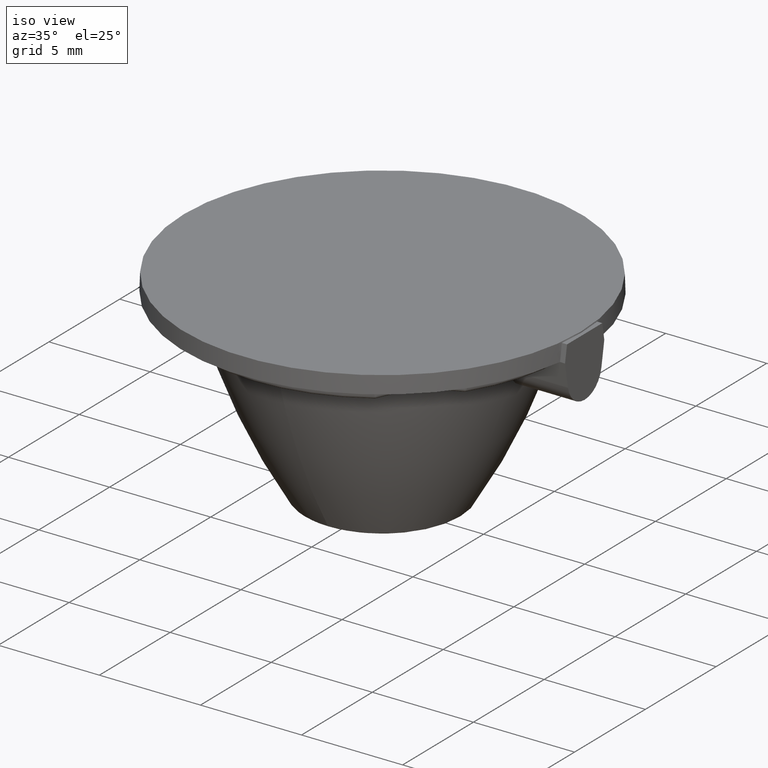
[diagram: clean part render]
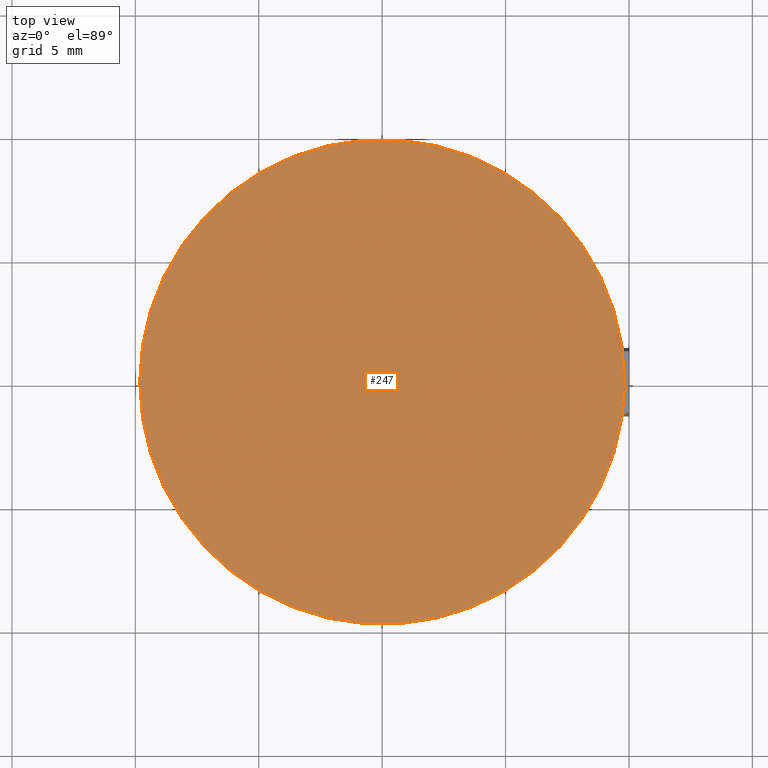
[diagram: tour spotlight — one face highlighted and labeled with its STEP entity id]
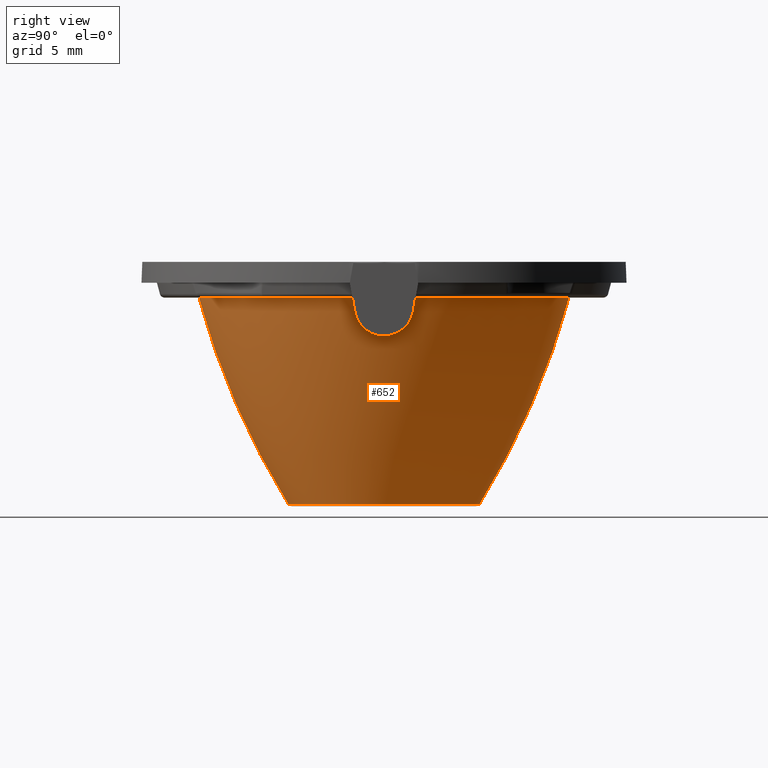
[diagram: tour spotlight — one face highlighted and labeled with its STEP entity id]
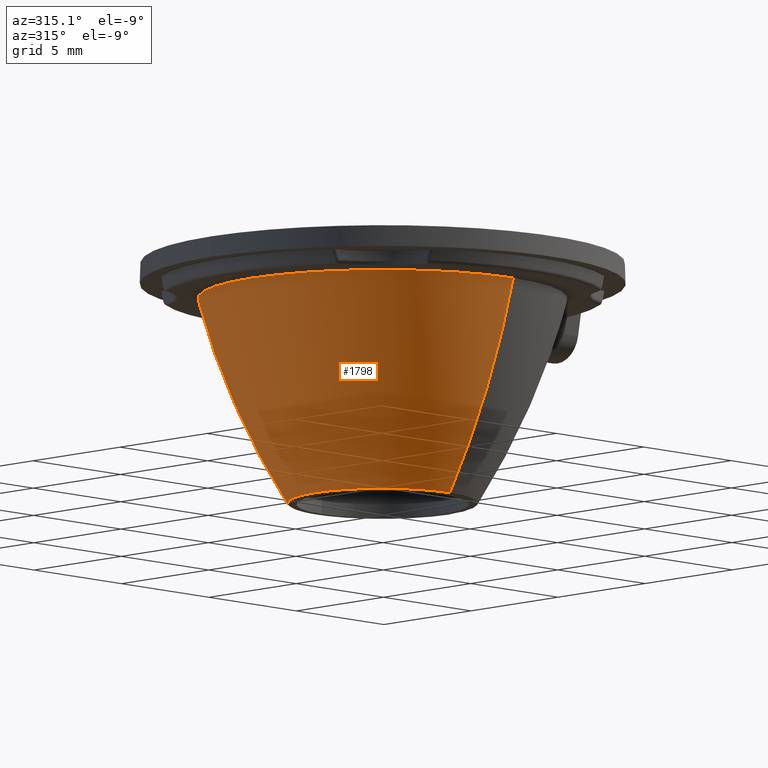
[diagram: tour spotlight — one face highlighted and labeled with its STEP entity id]
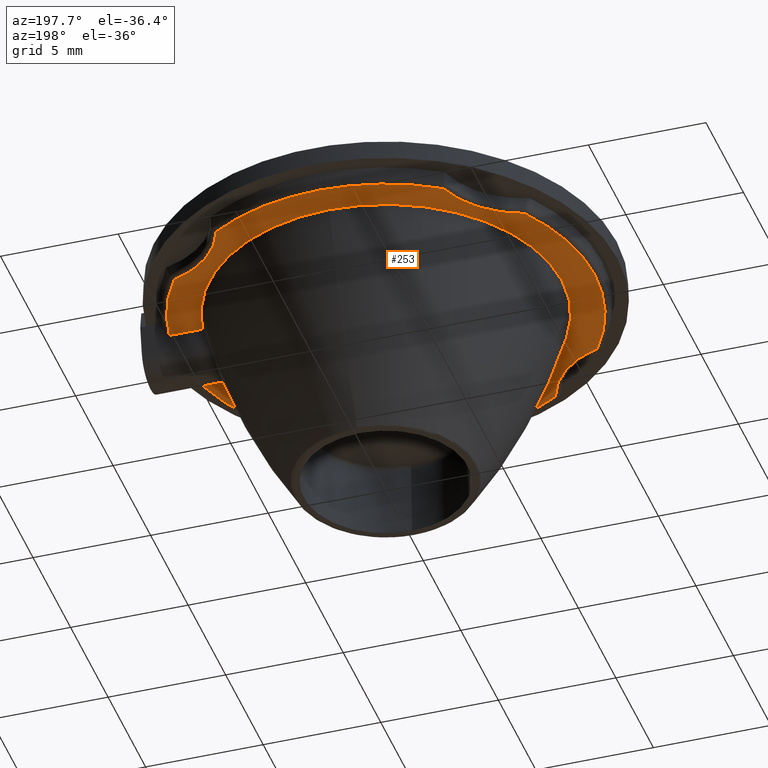
[diagram: tour spotlight — one face highlighted and labeled with its STEP entity id]
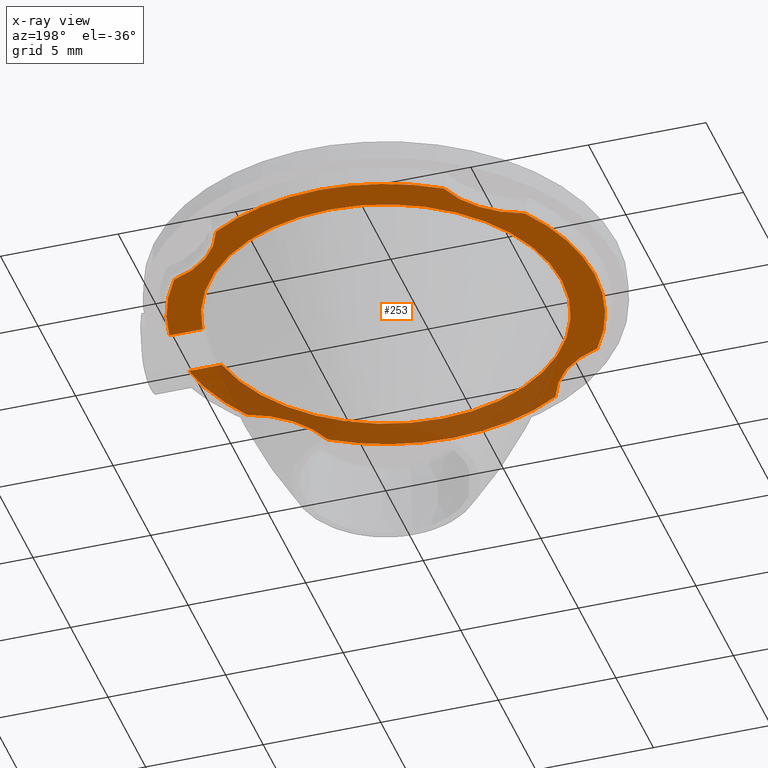
[diagram: x-ray of the same camera — body ghosted, this tour face saturated]
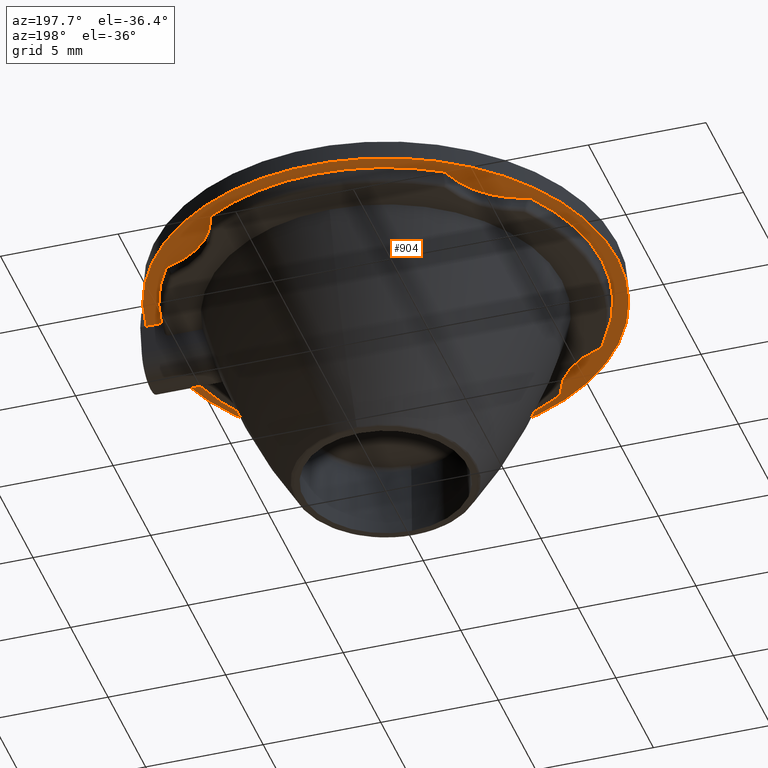
[diagram: tour spotlight — one face highlighted and labeled with its STEP entity id]
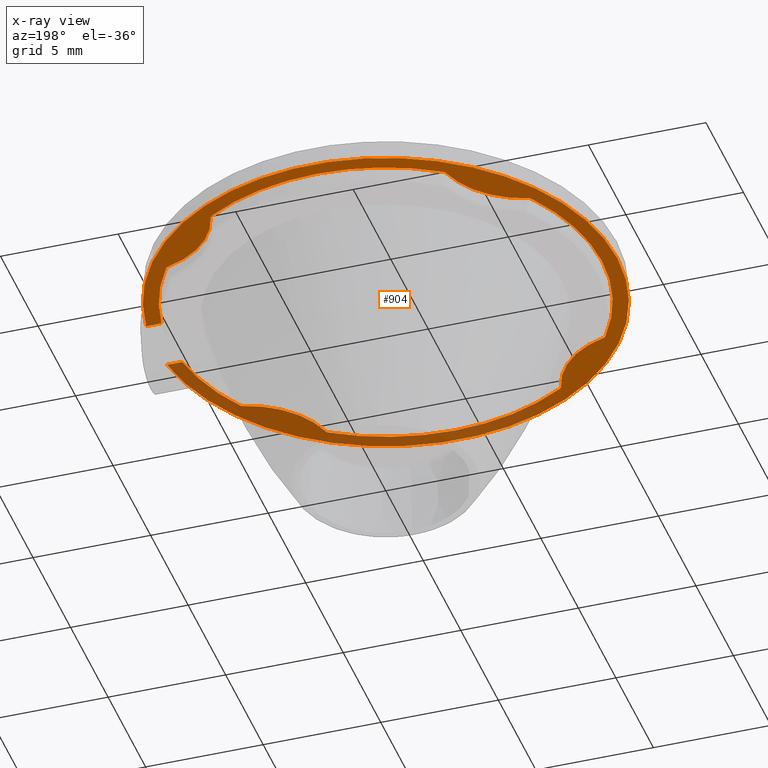
[diagram: x-ray of the same camera — body ghosted, this tour face saturated]
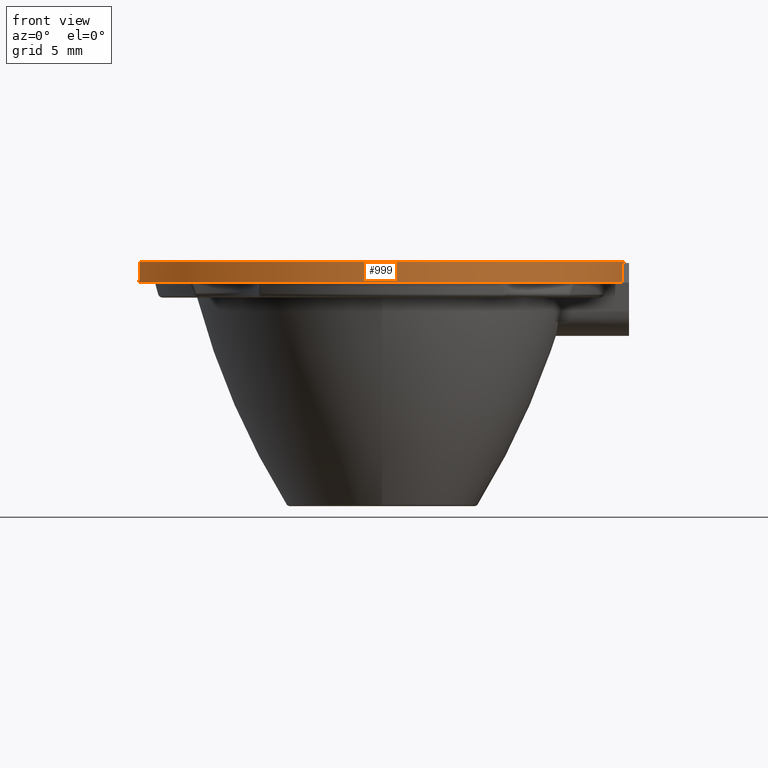
[diagram: tour spotlight — one face highlighted and labeled with its STEP entity id]
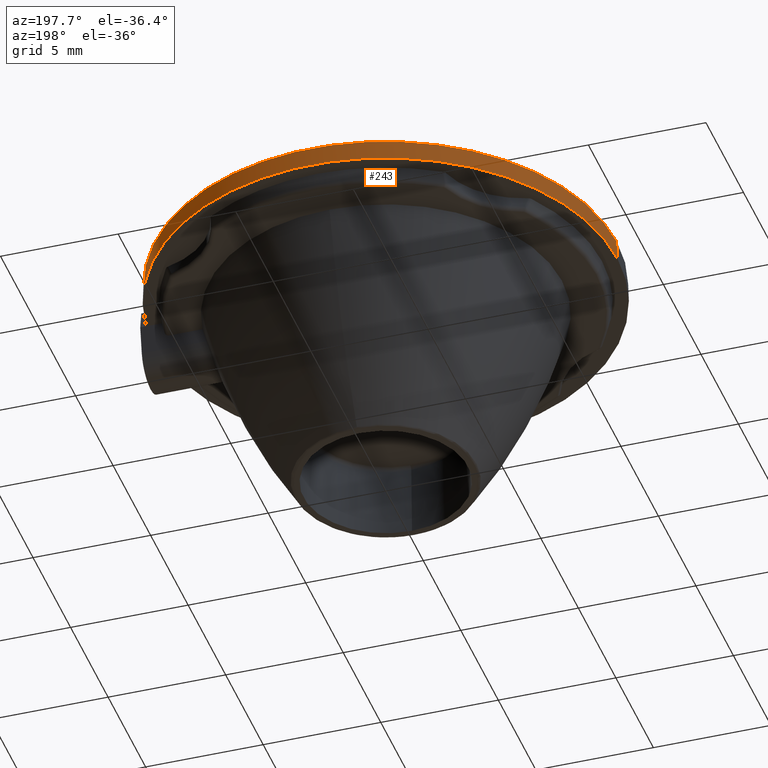
[diagram: tour spotlight — one face highlighted and labeled with its STEP entity id]
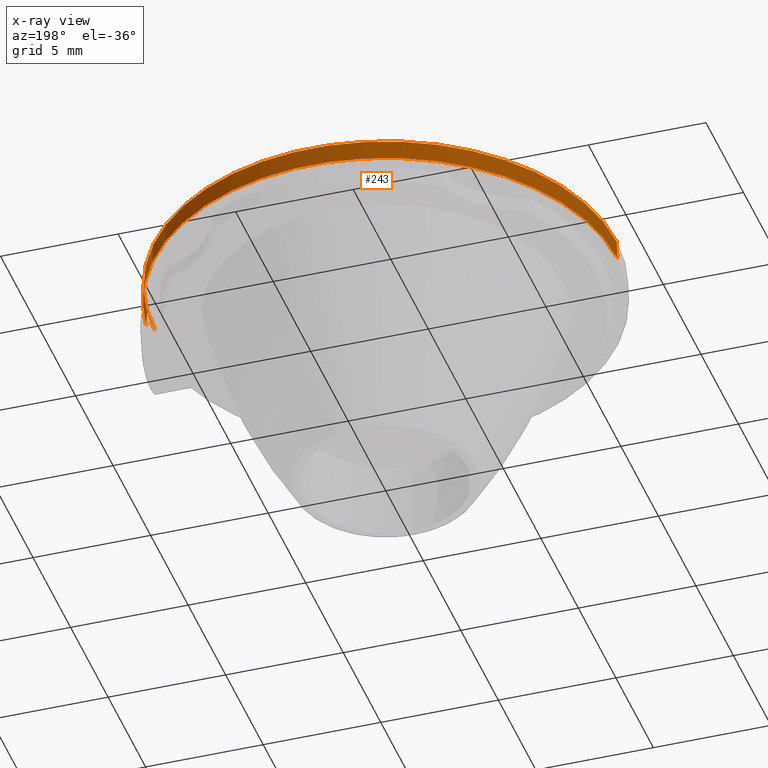
[diagram: x-ray of the same camera — body ghosted, this tour face saturated]
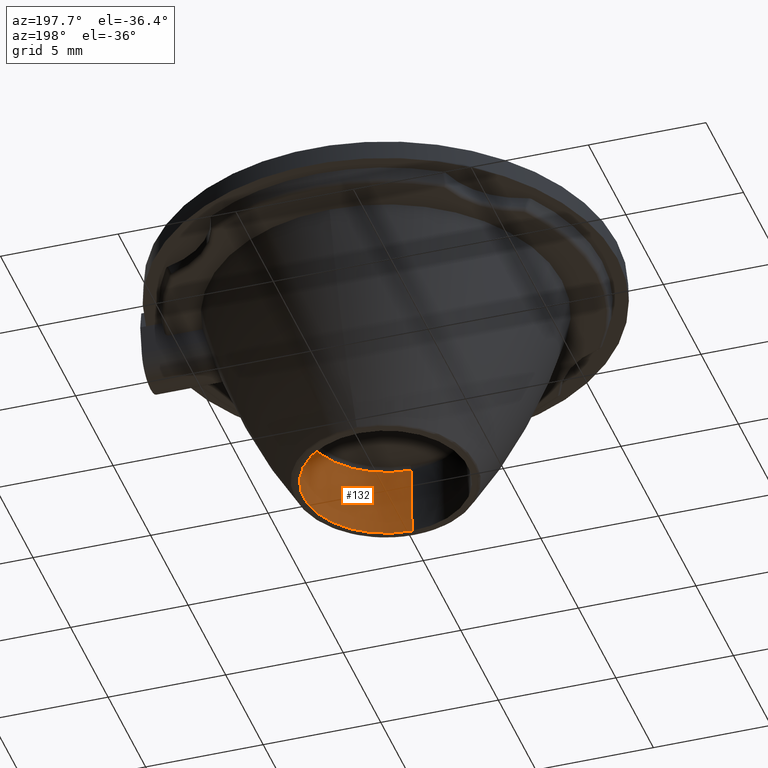
[diagram: tour spotlight — one face highlighted and labeled with its STEP entity id]
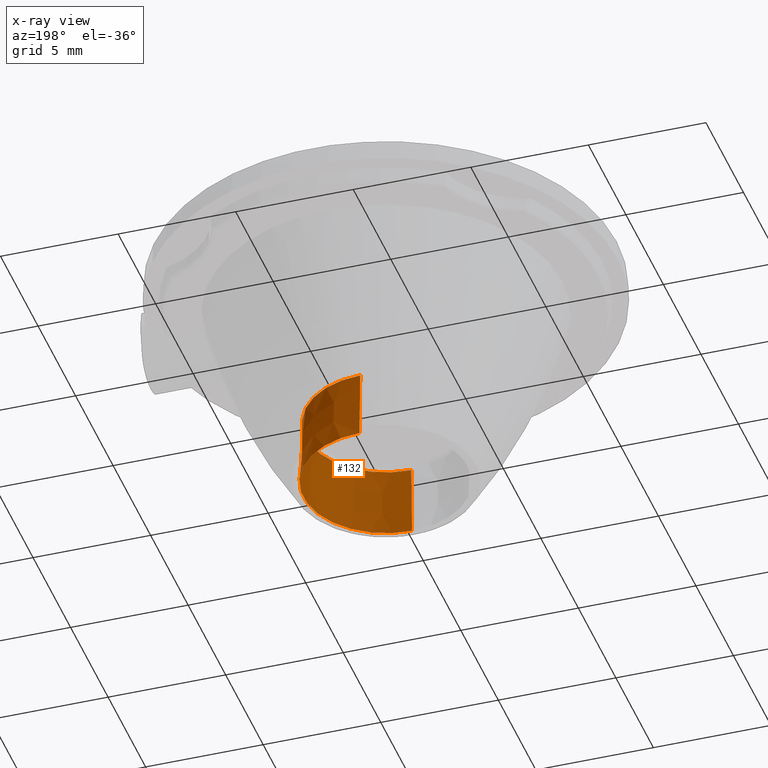
[diagram: x-ray of the same camera — body ghosted, this tour face saturated]
A machine part: a face-by-face anatomy tour. The part has 59 B-rep faces; the first image is the clean iso view, then the 8 largest visible faces are spotlighted one at a time (largest first), each with its STEP entity span.

Face 1 — top view, entity #247. In plain terms, the highlighted planar face has unit normal (0, 0, -1).
Definition (entity closure, byte-faithful):
#38 = CIRCLE ( 'NONE', #1135, 9.820317345932011222 ) ;
#48 = CIRCLE ( 'NONE', #1152, 9.820317345932011222 ) ;
#233 = DIRECTION ( 'NONE',  ( 0.0000000000000000000, 1.000000000000000000, 0.0000000000000000000 ) ) ;
#247 = ADVANCED_FACE ( 'NONE', ( #1144 ), #1889, .F. ) ;
#312 = EDGE_CURVE ( 'NONE', #1426, #967, #38, .T. ) ;
#351 = EDGE_LOOP ( 'NONE', ( #1417, #432 ) ) ;
#432 = ORIENTED_EDGE ( 'NONE', *, *, #785, .F. ) ;
#785 = EDGE_CURVE ( 'NONE', #967, #1426, #48, .T. ) ;
#842 = CARTESIAN_POINT ( 'NONE',  ( 0.0000000000000000000, 0.0000000000000000000, 11.65000000000000036 ) ) ;
#854 = DIRECTION ( 'NONE',  ( -1.000000000000000000, 0.0000000000000000000, 0.0000000000000000000 ) ) ;
#965 = DIRECTION ( 'NONE',  ( 5.204170427930410436E-16, 0.0000000000000000000, -1.000000000000000000 ) ) ;
#967 = VERTEX_POINT ( 'NONE', #1221 ) ;
#1135 = AXIS2_PLACEMENT_3D ( 'NONE', #842, #1431, #854 ) ;
#1144 = FACE_OUTER_BOUND ( 'NONE', #351, .T. ) ;
#1151 = DIRECTION ( 'NONE',  ( 0.0000000000000000000, 0.0000000000000000000, -1.000000000000000000 ) ) ;
#1152 = AXIS2_PLACEMENT_3D ( 'NONE', #1895, #1151, #1722 ) ;
#1221 = CARTESIAN_POINT ( 'NONE',  ( 9.820317345932011222, 1.204459558795414853E-15, 11.65000000000000036 ) ) ;
#1330 = AXIS2_PLACEMENT_3D ( 'NONE', #1589, #965, #233 ) ;
#1417 = ORIENTED_EDGE ( 'NONE', *, *, #312, .F. ) ;
#1423 = CARTESIAN_POINT ( 'NONE',  ( -9.820317345932011222, 0.0000000000000000000, 11.65000000000000036 ) ) ;
#1426 = VERTEX_POINT ( 'NONE', #1423 ) ;
#1431 = DIRECTION ( 'NONE',  ( 0.0000000000000000000, 0.0000000000000000000, -1.000000000000000000 ) ) ;
#1589 = CARTESIAN_POINT ( 'NONE',  ( 0.0000000000000000000, 0.0000000000000000000, 11.65000000000000036 ) ) ;
#1722 = DIRECTION ( 'NONE',  ( -1.000000000000000000, 0.0000000000000000000, 0.0000000000000000000 ) ) ;
#1889 = PLANE ( 'NONE',  #1330 ) ;
#1895 = CARTESIAN_POINT ( 'NONE',  ( 0.0000000000000000000, 0.0000000000000000000, 11.65000000000000036 ) ) ;

Face 2 — right view, entity #652. In plain terms, the highlighted toroidal blend (fillet) surface has major radius 22.8102 mm and minor (blend) radius 31.38 mm.
Definition (entity closure, byte-faithful):
#3 = CARTESIAN_POINT ( 'NONE',  ( 7.101542375287600350, 0.8845073915828040034, 9.026863584750284275 ) ) ;
#13 = CARTESIAN_POINT ( 'NONE',  ( 7.123022456665196067, 0.9731993176505892018, 9.134189832098066120 ) ) ;
#65 = DIRECTION ( 'NONE',  ( -1.224646799147353207E-16, 1.000000000000000000, 0.0000000000000000000 ) ) ;
#136 = CARTESIAN_POINT ( 'NONE',  ( 7.067415053027129801, -0.6694472910086370909, 8.844308043356196691 ) ) ;
#165 = CARTESIAN_POINT ( 'NONE',  ( 7.055433514695102382, 0.5477616137713150479, 8.772961307691979016 ) ) ;
#166 = CARTESIAN_POINT ( 'NONE',  ( 7.243942455039078965, 1.181769303614650157, 9.641622186799693850 ) ) ;
#178 = DIRECTION ( 'NONE',  ( 0.0000000000000000000, 0.0000000000000000000, 1.000000000000000000 ) ) ;
#202 = ORIENTED_EDGE ( 'NONE', *, *, #1906, .T. ) ;
#215 = DIRECTION ( 'NONE',  ( 1.000000000000000000, 1.224646799147353207E-16, 1.686393384937027688E-32 ) ) ;
#297 = AXIS2_PLACEMENT_3D ( 'NONE', #761, #1067, #615 ) ;
#315 = CARTESIAN_POINT ( 'NONE',  ( 7.035748966385622083, 0.1420439587463292463, 8.650064799054725029 ) ) ;
#324 = CARTESIAN_POINT ( 'NONE',  ( 7.039492471067078760, -0.2815152728967570961, 8.675002467349045787 ) ) ;
#343 = ORIENTED_EDGE ( 'NONE', *, *, #1205, .F. ) ;
#359 = CARTESIAN_POINT ( 'NONE',  ( 3.858746235027349591, 5.863187464904629268E-15, 1.804377609017361772 ) ) ;
#371 = CARTESIAN_POINT ( 'NONE',  ( 8.673617379884039416E-16, 5.863187464904629268E-15, 10.20000000000000462 ) ) ;
#392 = ORIENTED_EDGE ( 'NONE', *, *, #1097, .T. ) ;
#424 = CIRCLE ( 'NONE', #1503, 7.495250989909599149 ) ;
#431 = CARTESIAN_POINT ( 'NONE',  ( 7.243942455039086070, -1.181769303614652156, 9.641622186799692074 ) ) ;
#471 = CARTESIAN_POINT ( 'NONE',  ( 8.673617379884039416E-16, 5.863187464904629268E-15, 10.20000000000000462 ) ) ;
#488 = CIRCLE ( 'NONE', #1505, 3.858746235027346483 ) ;
#492 = CARTESIAN_POINT ( 'NONE',  ( 7.292879793850644887, 1.214505210951699388, 9.827276742928997777 ) ) ;
#509 = AXIS2_PLACEMENT_3D ( 'NONE', #570, #215, #65 ) ;
#570 = CARTESIAN_POINT ( 'NONE',  ( -2.793446497548260442E-15, 22.81022168590295962, 18.34122779936292602 ) ) ;
#589 = DIRECTION ( 'NONE',  ( 0.0000000000000000000, 1.000000000000000000, 1.123890617780229222E-16 ) ) ;
#599 = DIRECTION ( 'NONE',  ( 1.000000000000000000, 0.0000000000000000000, 0.0000000000000000000 ) ) ;
#606 = CARTESIAN_POINT ( 'NONE',  ( 7.067378881396308543, 0.6694620304117177012, 8.844153354774308085 ) ) ;
#615 = DIRECTION ( 'NONE',  ( 0.0000000000000000000, 1.000000000000000000, 1.123890617780229222E-16 ) ) ;
#634 = CARTESIAN_POINT ( 'NONE',  ( 0.0000000000000000000, 7.495250989909606254, 10.20000000000000462 ) ) ;
#636 = CARTESIAN_POINT ( 'NONE',  ( 7.385107164020463522, 1.280226377510851776, 10.20000000000000107 ) ) ;
#652 = ADVANCED_FACE ( 'NONE', ( #1229 ), #1090, .T. ) ;
#666 = VERTEX_POINT ( 'NONE', #634 ) ;
#673 = ORIENTED_EDGE ( 'NONE', *, *, #1050, .T. ) ;
#704 = VERTEX_POINT ( 'NONE', #359 ) ;
#717 = CARTESIAN_POINT ( 'NONE',  ( 0.0000000000000000000, -22.81022168590296673, 18.34122779936291892 ) ) ;
#761 = CARTESIAN_POINT ( 'NONE',  ( 0.0000000000000000000, -2.484708624473560725E-16, 1.804377609017361772 ) ) ;
#813 = VERTEX_POINT ( 'NONE', #986 ) ;
#840 = EDGE_CURVE ( 'NONE', #666, #1831, #1407, .T. ) ;
#860 = ORIENTED_EDGE ( 'NONE', *, *, #1544, .T. ) ;
#884 = AXIS2_PLACEMENT_3D ( 'NONE', #471, #178, #599 ) ;
#915 = CARTESIAN_POINT ( 'NONE',  ( 7.243942455039078965, 1.181769303614650157, 9.641622186799693850 ) ) ;
#921 = DIRECTION ( 'NONE',  ( -0.0000000000000000000, 1.377044700652596602E-16, -1.000000000000000000 ) ) ;
#939 = CARTESIAN_POINT ( 'NONE',  ( 0.0000000000000000000, -3.469446951953614189E-15, 18.34122779936292247 ) ) ;
#963 = DIRECTION ( 'NONE',  ( -1.000000000000000000, 0.0000000000000000000, 0.0000000000000000000 ) ) ;
#986 = CARTESIAN_POINT ( 'NONE',  ( 7.243942455039086070, -1.181769303614652156, 9.641622186799692074 ) ) ;
#1004 = AXIS2_PLACEMENT_3D ( 'NONE', #939, #1064, #1529 ) ;
#1015 = DIRECTION ( 'NONE',  ( 1.000000000000000000, 0.0000000000000000000, 0.0000000000000000000 ) ) ;
#1030 = CARTESIAN_POINT ( 'NONE',  ( 7.385107164020463522, 1.280226377510851776, 10.20000000000000107 ) ) ;
#1036 = CARTESIAN_POINT ( 'NONE',  ( 7.039496206437342529, 0.2819953461079365287, 8.675038828291171455 ) ) ;
#1045 = CARTESIAN_POINT ( 'NONE',  ( 0.0000000000000000000, 3.858746235027346039, 1.804377609017362216 ) ) ;
#1050 = EDGE_CURVE ( 'NONE', #1694, #1274, #1073, .T. ) ;
#1054 = CARTESIAN_POINT ( 'NONE',  ( 7.035729027427197302, -0.1409469845802446275, 8.649935451643688822 ) ) ;
#1064 = DIRECTION ( 'NONE',  ( -0.0000000000000000000, 1.377044700652596602E-16, -1.000000000000000000 ) ) ;
#1067 = DIRECTION ( 'NONE',  ( -0.0000000000000000000, 1.377044700652596602E-16, -1.000000000000000000 ) ) ;
#1073 = CIRCLE ( 'NONE', #509, 31.37995003478402722 ) ;
#1074 = CIRCLE ( 'NONE', #297, 3.858746235027346483 ) ;
#1090 = TOROIDAL_SURFACE ( 'NONE', #1004, -22.81022168590296317, 31.37995003478402722 ) ;
#1097 = EDGE_CURVE ( 'NONE', #813, #1288, #1258, .T. ) ;
#1101 = EDGE_CURVE ( 'NONE', #1694, #1288, #424, .T. ) ;
#1120 = VERTEX_POINT ( 'NONE', #1030 ) ;
#1161 = DIRECTION ( 'NONE',  ( 0.0000000000000000000, 0.0000000000000000000, 1.000000000000000000 ) ) ;
#1180 = CARTESIAN_POINT ( 'NONE',  ( 7.292879793850645775, -1.214505210951701386, 9.827276742928997777 ) ) ;
#1185 = CARTESIAN_POINT ( 'NONE',  ( 7.243942455039086070, -1.181769303614652156, 9.641622186799692074 ) ) ;
#1194 = CARTESIAN_POINT ( 'NONE',  ( 7.118156662174820681, -0.9895696319361675375, 9.115795742359820153 ) ) ;
#1205 = EDGE_CURVE ( 'NONE', #1120, #666, #1435, .T. ) ;
#1229 = FACE_OUTER_BOUND ( 'NONE', #1292, .T. ) ;
#1253 = VERTEX_POINT ( 'NONE', #915 ) ;
#1258 = B_SPLINE_CURVE_WITH_KNOTS ( 'NONE', 3,
 ( #431, #1180, #1709, #1392 ),
 .UNSPECIFIED., .F., .F.,
 ( 4, 4 ),
 ( 2.098061261484289979E-07, 0.0005845102876734066880 ),
 .UNSPECIFIED. ) ;
#1273 = B_SPLINE_CURVE_WITH_KNOTS ( 'NONE', 3,
 ( #1344, #1784, #1336, #13, #3, #606, #165, #1036, #315, #1054, #324, #1809, #136, #1194, #1933, #1185 ),
 .UNSPECIFIED., .F., .F.,
 ( 4, 2, 2, 2, 2, 2, 2, 4 ),
 ( 2.069209832374852430E-07, 0.0004213371490033119486, 0.0008424673770233864246, 0.001263597605043460846, 0.001684727833063535051, 0.002105858061083609473, 0.002526988289103683245, 0.003369248745143834690 ),
 .UNSPECIFIED. ) ;
#1274 = VERTEX_POINT ( 'NONE', #1813 ) ;
#1288 = VERTEX_POINT ( 'NONE', #1412 ) ;
#1292 = EDGE_LOOP ( 'NONE', ( #1830, #673, #1447, #1475, #1756, #343, #202, #860, #392 ) ) ;
#1336 = CARTESIAN_POINT ( 'NONE',  ( 7.177014179282906525, 1.111566987273735929, 9.376798202507062641 ) ) ;
#1344 = CARTESIAN_POINT ( 'NONE',  ( 7.243942455039078965, 1.181769303614650157, 9.641622186799693850 ) ) ;
#1392 = CARTESIAN_POINT ( 'NONE',  ( 7.385107164020456416, -1.280226377510854219, 10.20000000000000462 ) ) ;
#1407 = CIRCLE ( 'NONE', #1886, 31.37995003478402722 ) ;
#1412 = CARTESIAN_POINT ( 'NONE',  ( 7.385107164020456416, -1.280226377510854219, 10.20000000000000462 ) ) ;
#1435 = CIRCLE ( 'NONE', #884, 7.495250989909599149 ) ;
#1447 = ORIENTED_EDGE ( 'NONE', *, *, #1527, .F. ) ;
#1475 = ORIENTED_EDGE ( 'NONE', *, *, #1587, .F. ) ;
#1503 = AXIS2_PLACEMENT_3D ( 'NONE', #371, #1593, #1015 ) ;
#1505 = AXIS2_PLACEMENT_3D ( 'NONE', #1660, #921, #589 ) ;
#1527 = EDGE_CURVE ( 'NONE', #704, #1274, #1074, .T. ) ;
#1529 = DIRECTION ( 'NONE',  ( 0.0000000000000000000, 1.000000000000000000, 1.377044700652596602E-16 ) ) ;
#1544 = EDGE_CURVE ( 'NONE', #1253, #813, #1273, .T. ) ;
#1587 = EDGE_CURVE ( 'NONE', #1831, #704, #488, .T. ) ;
#1593 = DIRECTION ( 'NONE',  ( 0.0000000000000000000, 0.0000000000000000000, 1.000000000000000000 ) ) ;
#1618 = B_SPLINE_CURVE_WITH_KNOTS ( 'NONE', 3,
 ( #636, #1819, #492, #166 ),
 .UNSPECIFIED., .F., .F.,
 ( 4, 4 ),
 ( 2.087661750378304545E-07, 0.0005845092477222960017 ),
 .UNSPECIFIED. ) ;
#1660 = CARTESIAN_POINT ( 'NONE',  ( 0.0000000000000000000, -2.484708624473560725E-16, 1.804377609017361772 ) ) ;
#1694 = VERTEX_POINT ( 'NONE', #1782 ) ;
#1709 = CARTESIAN_POINT ( 'NONE',  ( 7.339940350016574300, -1.247327459247162817, 10.01342096296603223 ) ) ;
#1756 = ORIENTED_EDGE ( 'NONE', *, *, #840, .F. ) ;
#1782 = CARTESIAN_POINT ( 'NONE',  ( 9.179035133598821951E-16, -7.495250989909602701, 10.20000000000000462 ) ) ;
#1784 = CARTESIAN_POINT ( 'NONE',  ( 7.208178600129309110, 1.157845603046247174, 9.505944138708128932 ) ) ;
#1809 = CARTESIAN_POINT ( 'NONE',  ( 7.055311600074618106, -0.5461430804863260935, 8.772225540176943781 ) ) ;
#1813 = CARTESIAN_POINT ( 'NONE',  ( 6.952318179523487452E-16, -3.858746235027346927, 1.804377609017361328 ) ) ;
#1819 = CARTESIAN_POINT ( 'NONE',  ( 7.339940350016567194, 1.247327459247160597, 10.01342096296603401 ) ) ;
#1830 = ORIENTED_EDGE ( 'NONE', *, *, #1101, .F. ) ;
#1831 = VERTEX_POINT ( 'NONE', #1045 ) ;
#1886 = AXIS2_PLACEMENT_3D ( 'NONE', #717, #963, #1161 ) ;
#1906 = EDGE_CURVE ( 'NONE', #1120, #1253, #1618, .T. ) ;
#1933 = CARTESIAN_POINT ( 'NONE',  ( 7.172403716732738133, -1.133914525135282680, 9.370224251626821044 ) ) ;

Face 3 — auxiliary view, entity #1798. In plain terms, the highlighted toroidal blend (fillet) surface has major radius 22.8102 mm and minor (blend) radius 31.38 mm.
Definition (entity closure, byte-faithful):
#65 = DIRECTION ( 'NONE',  ( -1.224646799147353207E-16, 1.000000000000000000, 0.0000000000000000000 ) ) ;
#77 = AXIS2_PLACEMENT_3D ( 'NONE', #447, #864, #1043 ) ;
#149 = EDGE_CURVE ( 'NONE', #1274, #1608, #926, .T. ) ;
#215 = DIRECTION ( 'NONE',  ( 1.000000000000000000, 1.224646799147353207E-16, 1.686393384937027688E-32 ) ) ;
#325 = CIRCLE ( 'NONE', #1468, 7.495250989909599149 ) ;
#354 = TOROIDAL_SURFACE ( 'NONE', #1927, -22.81022168590296317, 31.37995003478402722 ) ;
#447 = CARTESIAN_POINT ( 'NONE',  ( 0.0000000000000000000, -2.484708624473560725E-16, 1.804377609017361772 ) ) ;
#496 = ORIENTED_EDGE ( 'NONE', *, *, #1789, .F. ) ;
#497 = ORIENTED_EDGE ( 'NONE', *, *, #1050, .F. ) ;
#509 = AXIS2_PLACEMENT_3D ( 'NONE', #570, #215, #65 ) ;
#554 = CARTESIAN_POINT ( 'NONE',  ( 0.0000000000000000000, -3.469446951953614189E-15, 18.34122779936292247 ) ) ;
#570 = CARTESIAN_POINT ( 'NONE',  ( -2.793446497548260442E-15, 22.81022168590295962, 18.34122779936292602 ) ) ;
#581 = DIRECTION ( 'NONE',  ( 1.000000000000000000, 0.0000000000000000000, 0.0000000000000000000 ) ) ;
#634 = CARTESIAN_POINT ( 'NONE',  ( 0.0000000000000000000, 7.495250989909606254, 10.20000000000000462 ) ) ;
#666 = VERTEX_POINT ( 'NONE', #634 ) ;
#712 = FACE_OUTER_BOUND ( 'NONE', #1788, .T. ) ;
#717 = CARTESIAN_POINT ( 'NONE',  ( 0.0000000000000000000, -22.81022168590296673, 18.34122779936291892 ) ) ;
#726 = CARTESIAN_POINT ( 'NONE',  ( 8.673617379884039416E-16, 5.863187464904629268E-15, 10.20000000000000462 ) ) ;
#727 = ORIENTED_EDGE ( 'NONE', *, *, #1141, .F. ) ;
#840 = EDGE_CURVE ( 'NONE', #666, #1831, #1407, .T. ) ;
#864 = DIRECTION ( 'NONE',  ( -0.0000000000000000000, 1.377044700652596602E-16, -1.000000000000000000 ) ) ;
#887 = DIRECTION ( 'NONE',  ( -0.0000000000000000000, 1.377044700652596602E-16, -1.000000000000000000 ) ) ;
#899 = CIRCLE ( 'NONE', #1381, 3.858746235027346483 ) ;
#926 = CIRCLE ( 'NONE', #77, 3.858746235027346483 ) ;
#963 = DIRECTION ( 'NONE',  ( -1.000000000000000000, 0.0000000000000000000, 0.0000000000000000000 ) ) ;
#1001 = DIRECTION ( 'NONE',  ( 0.0000000000000000000, 1.000000000000000000, 1.123890617780229222E-16 ) ) ;
#1043 = DIRECTION ( 'NONE',  ( 0.0000000000000000000, 1.000000000000000000, 1.123890617780229222E-16 ) ) ;
#1045 = CARTESIAN_POINT ( 'NONE',  ( 0.0000000000000000000, 3.858746235027346039, 1.804377609017362216 ) ) ;
#1050 = EDGE_CURVE ( 'NONE', #1694, #1274, #1073, .T. ) ;
#1073 = CIRCLE ( 'NONE', #509, 31.37995003478402722 ) ;
#1141 = EDGE_CURVE ( 'NONE', #666, #1694, #325, .T. ) ;
#1146 = DIRECTION ( 'NONE',  ( 0.0000000000000000000, 1.000000000000000000, 1.377044700652596602E-16 ) ) ;
#1161 = DIRECTION ( 'NONE',  ( 0.0000000000000000000, 0.0000000000000000000, 1.000000000000000000 ) ) ;
#1274 = VERTEX_POINT ( 'NONE', #1813 ) ;
#1337 = DIRECTION ( 'NONE',  ( -0.0000000000000000000, 1.377044700652596602E-16, -1.000000000000000000 ) ) ;
#1363 = CARTESIAN_POINT ( 'NONE',  ( -3.858746235027348703, 6.335747587449443971E-15, 1.804377609017361772 ) ) ;
#1381 = AXIS2_PLACEMENT_3D ( 'NONE', #1605, #887, #1001 ) ;
#1407 = CIRCLE ( 'NONE', #1886, 31.37995003478402722 ) ;
#1420 = ORIENTED_EDGE ( 'NONE', *, *, #149, .F. ) ;
#1468 = AXIS2_PLACEMENT_3D ( 'NONE', #726, #1914, #581 ) ;
#1582 = ORIENTED_EDGE ( 'NONE', *, *, #840, .T. ) ;
#1605 = CARTESIAN_POINT ( 'NONE',  ( 0.0000000000000000000, -2.484708624473560725E-16, 1.804377609017361772 ) ) ;
#1608 = VERTEX_POINT ( 'NONE', #1363 ) ;
#1694 = VERTEX_POINT ( 'NONE', #1782 ) ;
#1782 = CARTESIAN_POINT ( 'NONE',  ( 9.179035133598821951E-16, -7.495250989909602701, 10.20000000000000462 ) ) ;
#1788 = EDGE_LOOP ( 'NONE', ( #497, #727, #1582, #496, #1420 ) ) ;
#1789 = EDGE_CURVE ( 'NONE', #1608, #1831, #899, .T. ) ;
#1798 = ADVANCED_FACE ( 'NONE', ( #712 ), #354, .T. ) ;
#1813 = CARTESIAN_POINT ( 'NONE',  ( 6.952318179523487452E-16, -3.858746235027346927, 1.804377609017361328 ) ) ;
#1831 = VERTEX_POINT ( 'NONE', #1045 ) ;
#1886 = AXIS2_PLACEMENT_3D ( 'NONE', #717, #963, #1161 ) ;
#1914 = DIRECTION ( 'NONE',  ( 0.0000000000000000000, 0.0000000000000000000, 1.000000000000000000 ) ) ;
#1927 = AXIS2_PLACEMENT_3D ( 'NONE', #554, #1337, #1146 ) ;

Face 4 — auxiliary view, entity #253. An x-ray twin of the same camera follows (body ghosted, this face saturated) — the face is partly hidden behind the body. In plain terms, the highlighted planar face has unit normal (0, 0, -1).
Definition (entity closure, byte-faithful):
#1 = DIRECTION ( 'NONE',  ( 0.0000000000000000000, 0.0000000000000000000, -1.000000000000000000 ) ) ;
#8 = CARTESIAN_POINT ( 'NONE',  ( -8.626702730476349501, -8.626702730475408032, 10.20000000000000107 ) ) ;
#9 = CIRCLE ( 'NONE', #1343, 3.964090216656959598 ) ;
#19 = VECTOR ( 'NONE', #1369, 1000.000000000000000 ) ;
#30 = CARTESIAN_POINT ( 'NONE',  ( 8.626702730475408032, -8.626702730475868108, 10.20000000000000107 ) ) ;
#52 = ORIENTED_EDGE ( 'NONE', *, *, #1881, .F. ) ;
#80 = CARTESIAN_POINT ( 'NONE',  ( 2.474107080390835270E-32, 1.524758820474980809E-15, 10.20000000000000107 ) ) ;
#87 = VERTEX_POINT ( 'NONE', #751 ) ;
#89 = DIRECTION ( 'NONE',  ( 0.0000000000000000000, 0.0000000000000000000, -1.000000000000000000 ) ) ;
#113 = DIRECTION ( 'NONE',  ( 0.0000000000000000000, 0.0000000000000000000, -1.000000000000000000 ) ) ;
#121 = VERTEX_POINT ( 'NONE', #1035 ) ;
#131 = CARTESIAN_POINT ( 'NONE',  ( 8.626702730475866332, 8.626702730475891201, 10.20000000000000107 ) ) ;
#159 = AXIS2_PLACEMENT_3D ( 'NONE', #1641, #423, #1041 ) ;
#169 = EDGE_CURVE ( 'NONE', #1138, #1188, #1512, .T. ) ;
#177 = AXIS2_PLACEMENT_3D ( 'NONE', #689, #1738, #1569 ) ;
#178 = DIRECTION ( 'NONE',  ( 0.0000000000000000000, 0.0000000000000000000, 1.000000000000000000 ) ) ;
#200 = LINE ( 'NONE', #642, #502 ) ;
#235 = ORIENTED_EDGE ( 'NONE', *, *, #764, .T. ) ;
#237 = VERTEX_POINT ( 'NONE', #1154 ) ;
#251 = DIRECTION ( 'NONE',  ( -1.000000000000000000, 0.0000000000000000000, 0.0000000000000000000 ) ) ;
#252 = CIRCLE ( 'NONE', #340, 3.964090216656463550 ) ;
#253 = ADVANCED_FACE ( 'NONE', ( #1013 ), #552, .T. ) ;
#313 = CARTESIAN_POINT ( 'NONE',  ( 8.793056442597512401, 1.280226377510851776, 10.20000000000000107 ) ) ;
#325 = CIRCLE ( 'NONE', #1468, 7.495250989909599149 ) ;
#340 = AXIS2_PLACEMENT_3D ( 'NONE', #131, #1758, #1790 ) ;
#371 = CARTESIAN_POINT ( 'NONE',  ( 8.673617379884039416E-16, 5.863187464904629268E-15, 10.20000000000000462 ) ) ;
#407 = ORIENTED_EDGE ( 'NONE', *, *, #1207, .T. ) ;
#408 = VERTEX_POINT ( 'NONE', #1057 ) ;
#423 = DIRECTION ( 'NONE',  ( 0.0000000000000000000, 0.0000000000000000000, -1.000000000000000000 ) ) ;
#424 = CIRCLE ( 'NONE', #1503, 7.495250989909599149 ) ;
#435 = VERTEX_POINT ( 'NONE', #1323 ) ;
#446 = CARTESIAN_POINT ( 'NONE',  ( 2.474107080390835270E-32, 1.524758820474980809E-15, 10.20000000000000107 ) ) ;
#460 = LINE ( 'NONE', #1647, #19 ) ;
#461 = CIRCLE ( 'NONE', #1796, 3.964090216657143451 ) ;
#465 = EDGE_CURVE ( 'NONE', #87, #1414, #461, .T. ) ;
#471 = CARTESIAN_POINT ( 'NONE',  ( 8.673617379884039416E-16, 5.863187464904629268E-15, 10.20000000000000462 ) ) ;
#499 = EDGE_CURVE ( 'NONE', #408, #121, #252, .T. ) ;
#502 = VECTOR ( 'NONE', #801, 1000.000000000000000 ) ;
#513 = EDGE_CURVE ( 'NONE', #121, #1750, #1786, .T. ) ;
#552 = PLANE ( 'NONE',  #177 ) ;
#566 = DIRECTION ( 'NONE',  ( -1.000000000000000000, 8.752189688759169313E-16, 0.0000000000000000000 ) ) ;
#580 = AXIS2_PLACEMENT_3D ( 'NONE', #1492, #1795, #907 ) ;
#581 = DIRECTION ( 'NONE',  ( 1.000000000000000000, 0.0000000000000000000, 0.0000000000000000000 ) ) ;
#593 = EDGE_CURVE ( 'NONE', #1120, #1750, #200, .T. ) ;
#599 = DIRECTION ( 'NONE',  ( 1.000000000000000000, 0.0000000000000000000, 0.0000000000000000000 ) ) ;
#616 = AXIS2_PLACEMENT_3D ( 'NONE', #1218, #1345, #1826 ) ;
#634 = CARTESIAN_POINT ( 'NONE',  ( 0.0000000000000000000, 7.495250989909606254, 10.20000000000000462 ) ) ;
#642 = CARTESIAN_POINT ( 'NONE',  ( 10.00000000000000000, 1.280226377510851776, 10.20000000000000107 ) ) ;
#653 = ORIENTED_EDGE ( 'NONE', *, *, #1473, .T. ) ;
#655 = AXIS2_PLACEMENT_3D ( 'NONE', #30, #1359, #794 ) ;
#656 = EDGE_CURVE ( 'NONE', #1188, #237, #1591, .T. ) ;
#666 = VERTEX_POINT ( 'NONE', #634 ) ;
#688 = VERTEX_POINT ( 'NONE', #1847 ) ;
#689 = CARTESIAN_POINT ( 'NONE',  ( 2.474107080390835270E-32, 1.524758820474980809E-15, 10.20000000000000107 ) ) ;
#726 = CARTESIAN_POINT ( 'NONE',  ( 8.673617379884039416E-16, 5.863187464904629268E-15, 10.20000000000000462 ) ) ;
#729 = ORIENTED_EDGE ( 'NONE', *, *, #1896, .T. ) ;
#745 = CARTESIAN_POINT ( 'NONE',  ( 7.451368279778409764, -4.840860661028398404, 10.20000000000000107 ) ) ;
#749 = AXIS2_PLACEMENT_3D ( 'NONE', #1452, #113, #1305 ) ;
#750 = CARTESIAN_POINT ( 'NONE',  ( -7.451368279778106896, 4.840860661028869139, 10.20000000000000107 ) ) ;
#751 = CARTESIAN_POINT ( 'NONE',  ( -4.840860661028441037, -7.451368279778380455, 10.20000000000000107 ) ) ;
#764 = EDGE_CURVE ( 'NONE', #688, #408, #1651, .T. ) ;
#794 = DIRECTION ( 'NONE',  ( -1.000000000000000000, -3.500875875503881507E-15, 0.0000000000000000000 ) ) ;
#801 = DIRECTION ( 'NONE',  ( 1.000000000000000000, 0.0000000000000000000, 0.0000000000000000000 ) ) ;
#807 = ORIENTED_EDGE ( 'NONE', *, *, #1101, .T. ) ;
#884 = AXIS2_PLACEMENT_3D ( 'NONE', #471, #178, #599 ) ;
#906 = AXIS2_PLACEMENT_3D ( 'NONE', #80, #89, #251 ) ;
#907 = DIRECTION ( 'NONE',  ( -1.000000000000000000, 0.0000000000000000000, 0.0000000000000000000 ) ) ;
#971 = ORIENTED_EDGE ( 'NONE', *, *, #1703, .T. ) ;
#1013 = FACE_OUTER_BOUND ( 'NONE', #1332, .T. ) ;
#1015 = DIRECTION ( 'NONE',  ( 1.000000000000000000, 0.0000000000000000000, 0.0000000000000000000 ) ) ;
#1030 = CARTESIAN_POINT ( 'NONE',  ( 7.385107164020463522, 1.280226377510851776, 10.20000000000000107 ) ) ;
#1035 = CARTESIAN_POINT ( 'NONE',  ( 7.451368279778058934, 4.840860661028939305, 10.20000000000000107 ) ) ;
#1041 = DIRECTION ( 'NONE',  ( -1.000000000000000000, 0.0000000000000000000, 0.0000000000000000000 ) ) ;
#1042 = DIRECTION ( 'NONE',  ( -1.000000000000000000, 0.0000000000000000000, 0.0000000000000000000 ) ) ;
#1047 = ORIENTED_EDGE ( 'NONE', *, *, #656, .T. ) ;
#1057 = CARTESIAN_POINT ( 'NONE',  ( 4.840860661028937528, 7.451368279778061599, 10.20000000000000107 ) ) ;
#1101 = EDGE_CURVE ( 'NONE', #1694, #1288, #424, .T. ) ;
#1104 = CIRCLE ( 'NONE', #616, 8.885765086945534463 ) ;
#1112 = ORIENTED_EDGE ( 'NONE', *, *, #169, .T. ) ;
#1120 = VERTEX_POINT ( 'NONE', #1030 ) ;
#1138 = VERTEX_POINT ( 'NONE', #1246 ) ;
#1141 = EDGE_CURVE ( 'NONE', #666, #1694, #325, .T. ) ;
#1154 = CARTESIAN_POINT ( 'NONE',  ( 4.840860661028003165, -7.451368279778666448, 10.20000000000000107 ) ) ;
#1162 = CIRCLE ( 'NONE', #580, 8.885765086945534463 ) ;
#1166 = CARTESIAN_POINT ( 'NONE',  ( -7.451368279778909809, -4.840860661027629241, 10.20000000000000107 ) ) ;
#1182 = DIRECTION ( 'NONE',  ( -0.0000000000000000000, -0.0000000000000000000, 1.000000000000000000 ) ) ;
#1188 = VERTEX_POINT ( 'NONE', #745 ) ;
#1197 = DIRECTION ( 'NONE',  ( -1.000000000000000000, 0.0000000000000000000, 0.0000000000000000000 ) ) ;
#1205 = EDGE_CURVE ( 'NONE', #1120, #666, #1435, .T. ) ;
#1207 = EDGE_CURVE ( 'NONE', #1414, #435, #1162, .T. ) ;
#1218 = CARTESIAN_POINT ( 'NONE',  ( 2.474107080390835270E-32, 1.524758820474980809E-15, 10.20000000000000107 ) ) ;
#1246 = CARTESIAN_POINT ( 'NONE',  ( 8.793056442597512401, -1.280226377510854219, 10.20000000000000107 ) ) ;
#1288 = VERTEX_POINT ( 'NONE', #1412 ) ;
#1294 = DIRECTION ( 'NONE',  ( -0.0000000000000000000, -0.0000000000000000000, 1.000000000000000000 ) ) ;
#1305 = DIRECTION ( 'NONE',  ( -1.000000000000000000, 0.0000000000000000000, 0.0000000000000000000 ) ) ;
#1313 = ORIENTED_EDGE ( 'NONE', *, *, #513, .T. ) ;
#1323 = CARTESIAN_POINT ( 'NONE',  ( -8.885765086945534463, 1.524758820474980809E-15, 10.20000000000000107 ) ) ;
#1332 = EDGE_LOOP ( 'NONE', ( #1579, #1313, #1678, #1926, #1541, #807, #52, #1112, #1047, #729, #1884, #407, #971, #653, #235 ) ) ;
#1343 = AXIS2_PLACEMENT_3D ( 'NONE', #1913, #1294, #566 ) ;
#1345 = DIRECTION ( 'NONE',  ( 0.0000000000000000000, 0.0000000000000000000, -1.000000000000000000 ) ) ;
#1359 = DIRECTION ( 'NONE',  ( -0.0000000000000000000, -0.0000000000000000000, 1.000000000000000000 ) ) ;
#1369 = DIRECTION ( 'NONE',  ( -1.000000000000000000, 0.0000000000000000000, 0.0000000000000000000 ) ) ;
#1412 = CARTESIAN_POINT ( 'NONE',  ( 7.385107164020456416, -1.280226377510854219, 10.20000000000000462 ) ) ;
#1414 = VERTEX_POINT ( 'NONE', #1166 ) ;
#1435 = CIRCLE ( 'NONE', #884, 7.495250989909599149 ) ;
#1452 = CARTESIAN_POINT ( 'NONE',  ( 2.474107080390835270E-32, 1.524758820474980809E-15, 10.20000000000000107 ) ) ;
#1468 = AXIS2_PLACEMENT_3D ( 'NONE', #726, #1914, #581 ) ;
#1473 = EDGE_CURVE ( 'NONE', #1721, #688, #9, .T. ) ;
#1492 = CARTESIAN_POINT ( 'NONE',  ( 2.474107080390835270E-32, 1.524758820474980809E-15, 10.20000000000000107 ) ) ;
#1503 = AXIS2_PLACEMENT_3D ( 'NONE', #371, #1593, #1015 ) ;
#1512 = CIRCLE ( 'NONE', #749, 8.885765086945534463 ) ;
#1541 = ORIENTED_EDGE ( 'NONE', *, *, #1141, .T. ) ;
#1569 = DIRECTION ( 'NONE',  ( -1.000000000000000000, 0.0000000000000000000, -0.0000000000000000000 ) ) ;
#1579 = ORIENTED_EDGE ( 'NONE', *, *, #499, .T. ) ;
#1591 = CIRCLE ( 'NONE', #655, 3.964090216656717569 ) ;
#1593 = DIRECTION ( 'NONE',  ( 0.0000000000000000000, 0.0000000000000000000, 1.000000000000000000 ) ) ;
#1641 = CARTESIAN_POINT ( 'NONE',  ( 2.474107080390835270E-32, 1.524758820474980809E-15, 10.20000000000000107 ) ) ;
#1647 = CARTESIAN_POINT ( 'NONE',  ( 10.00000000000000000, -1.280226377510854219, 10.20000000000000107 ) ) ;
#1651 = CIRCLE ( 'NONE', #906, 8.885765086945534463 ) ;
#1665 = AXIS2_PLACEMENT_3D ( 'NONE', #446, #1, #1042 ) ;
#1678 = ORIENTED_EDGE ( 'NONE', *, *, #593, .F. ) ;
#1694 = VERTEX_POINT ( 'NONE', #1782 ) ;
#1703 = EDGE_CURVE ( 'NONE', #435, #1721, #1822, .T. ) ;
#1721 = VERTEX_POINT ( 'NONE', #750 ) ;
#1738 = DIRECTION ( 'NONE',  ( 0.0000000000000000000, 0.0000000000000000000, -1.000000000000000000 ) ) ;
#1750 = VERTEX_POINT ( 'NONE', #313 ) ;
#1758 = DIRECTION ( 'NONE',  ( -0.0000000000000000000, -0.0000000000000000000, 1.000000000000000000 ) ) ;
#1782 = CARTESIAN_POINT ( 'NONE',  ( 9.179035133598821951E-16, -7.495250989909602701, 10.20000000000000462 ) ) ;
#1786 = CIRCLE ( 'NONE', #159, 8.885765086945534463 ) ;
#1790 = DIRECTION ( 'NONE',  ( -1.000000000000000000, 0.0000000000000000000, 0.0000000000000000000 ) ) ;
#1795 = DIRECTION ( 'NONE',  ( 0.0000000000000000000, 0.0000000000000000000, -1.000000000000000000 ) ) ;
#1796 = AXIS2_PLACEMENT_3D ( 'NONE', #8, #1182, #1197 ) ;
#1822 = CIRCLE ( 'NONE', #1665, 8.885765086945534463 ) ;
#1826 = DIRECTION ( 'NONE',  ( -1.000000000000000000, 0.0000000000000000000, 0.0000000000000000000 ) ) ;
#1847 = CARTESIAN_POINT ( 'NONE',  ( -4.840860661028474787, 7.451368279778362691, 10.20000000000000107 ) ) ;
#1881 = EDGE_CURVE ( 'NONE', #1138, #1288, #460, .T. ) ;
#1884 = ORIENTED_EDGE ( 'NONE', *, *, #465, .T. ) ;
#1896 = EDGE_CURVE ( 'NONE', #237, #87, #1104, .T. ) ;
#1913 = CARTESIAN_POINT ( 'NONE',  ( -8.626702730475891201, 8.626702730476347725, 10.20000000000000107 ) ) ;
#1914 = DIRECTION ( 'NONE',  ( 0.0000000000000000000, 0.0000000000000000000, 1.000000000000000000 ) ) ;
#1926 = ORIENTED_EDGE ( 'NONE', *, *, #1205, .T. ) ;

Face 5 — auxiliary view, entity #904. An x-ray twin of the same camera follows (body ghosted, this face saturated) — the face is partly hidden behind the body. In plain terms, the highlighted planar face has unit normal (0, 0, 1).
Definition (entity closure, byte-faithful):
#12 = EDGE_CURVE ( 'NONE', #1771, #1567, #411, .T. ) ;
#18 = CARTESIAN_POINT ( 'NONE',  ( -7.749144370752246047, -4.959202488941854448, 10.80000000000000071 ) ) ;
#29 = EDGE_CURVE ( 'NONE', #1181, #1620, #434, .T. ) ;
#40 = CARTESIAN_POINT ( 'NONE',  ( -8.626702730476349501, -8.626702730475408032, 10.80000000000000071 ) ) ;
#42 = CARTESIAN_POINT ( 'NONE',  ( 9.751996792796681746, -1.386022565935929762, 10.80000000000000426 ) ) ;
#47 = B_SPLINE_CURVE_WITH_KNOTS ( 'NONE', 3,
 ( #1219, #1069, #1704, #1845 ),
 .UNSPECIFIED., .F., .F.,
 ( 4, 4 ),
 ( 0.0000000000000000000, 0.0001599168629429153045 ),
 .UNSPECIFIED. ) ;
#56 = CARTESIAN_POINT ( 'NONE',  ( 2.474107080390835270E-32, 1.524758820474980809E-15, 10.80000000000000071 ) ) ;
#69 = EDGE_CURVE ( 'NONE', #1086, #722, #1805, .T. ) ;
#81 = EDGE_CURVE ( 'NONE', #1016, #1567, #406, .T. ) ;
#90 = CIRCLE ( 'NONE', #410, 9.199999999999999289 ) ;
#100 = ORIENTED_EDGE ( 'NONE', *, *, #544, .F. ) ;
#124 = CARTESIAN_POINT ( 'NONE',  ( 7.778042542225271916, -4.913456442397124313, 10.80000000000000071 ) ) ;
#125 = CARTESIAN_POINT ( 'NONE',  ( 4.991815903096555651, 7.703109401106454257, 10.80000000000000071 ) ) ;
#133 = CARTESIAN_POINT ( 'NONE',  ( 2.474107080390835270E-32, 1.524758820474980809E-15, 10.80000000000000071 ) ) ;
#135 = B_SPLINE_CURVE_WITH_KNOTS ( 'NONE', 3,
 ( #832, #1421, #391, #414 ),
 .UNSPECIFIED., .F., .F.,
 ( 4, 4 ),
 ( 0.0000000000000000000, 0.0001600620619485622060 ),
 .UNSPECIFIED. ) ;
#142 = DIRECTION ( 'NONE',  ( -1.000000000000000000, 0.0000000000000000000, 0.0000000000000000000 ) ) ;
#172 = CARTESIAN_POINT ( 'NONE',  ( 7.650872523984927120, -5.005894062774318698, 10.80000000000000071 ) ) ;
#179 = CARTESIAN_POINT ( 'NONE',  ( 2.474107080390835270E-32, 1.524758820474980809E-15, 10.80000000000000071 ) ) ;
#209 = VECTOR ( 'NONE', #812, 1000.000000000000000 ) ;
#210 = DIRECTION ( 'NONE',  ( -1.000000000000000000, -0.0000000000000000000, -0.0000000000000000000 ) ) ;
#213 = ORIENTED_EDGE ( 'NONE', *, *, #1008, .T. ) ;
#220 = ORIENTED_EDGE ( 'NONE', *, *, #970, .T. ) ;
#221 = CARTESIAN_POINT ( 'NONE',  ( 7.778042542225271916, -4.913456442397124313, 10.80000000000000071 ) ) ;
#225 = AXIS2_PLACEMENT_3D ( 'NONE', #635, #1237, #628 ) ;
#229 = AXIS2_PLACEMENT_3D ( 'NONE', #753, #294, #886 ) ;
#230 = B_SPLINE_CURVE_WITH_KNOTS ( 'NONE', 3,
 ( #457, #125, #1919, #1174 ),
 .UNSPECIFIED., .F., .F.,
 ( 4, 4 ),
 ( 0.0000000000000000000, 0.0001600623855301978404 ),
 .UNSPECIFIED. ) ;
#250 = ORIENTED_EDGE ( 'NONE', *, *, #1852, .F. ) ;
#260 = CARTESIAN_POINT ( 'NONE',  ( -7.650872523985436935, -5.005894062773535325, 10.80000000000000071 ) ) ;
#271 = ORIENTED_EDGE ( 'NONE', *, *, #1360, .T. ) ;
#275 = EDGE_CURVE ( 'NONE', #1907, #722, #135, .T. ) ;
#290 = DIRECTION ( 'NONE',  ( 0.0000000000000000000, 0.0000000000000000000, -1.000000000000000000 ) ) ;
#293 = DIRECTION ( 'NONE',  ( -1.000000000000000000, 0.0000000000000000000, 0.0000000000000000000 ) ) ;
#294 = DIRECTION ( 'NONE',  ( 0.0000000000000000000, 0.0000000000000000000, -1.000000000000000000 ) ) ;
#338 = CARTESIAN_POINT ( 'NONE',  ( -7.650872523984691753, 5.005894062774742359, 10.80000000000000071 ) ) ;
#352 = VERTEX_POINT ( 'NONE', #1341 ) ;
#379 = VERTEX_POINT ( 'NONE', #1065 ) ;
#382 = CIRCLE ( 'NONE', #891, 3.750000000000681677 ) ;
#391 = CARTESIAN_POINT ( 'NONE',  ( -7.749119817458835158, 4.959241357010049533, 10.80000000000000071 ) ) ;
#394 = B_SPLINE_CURVE_WITH_KNOTS ( 'NONE', 3,
 ( #172, #1361, #436, #124 ),
 .UNSPECIFIED., .F., .F.,
 ( 4, 4 ),
 ( 0.0000000000000000000, 0.0001600623855304410812 ),
 .UNSPECIFIED. ) ;
#397 = EDGE_CURVE ( 'NONE', #1917, #1281, #394, .T. ) ;
#400 = CARTESIAN_POINT ( 'NONE',  ( -4.991815903096124885, -7.703109401106793541, 10.80000000000000071 ) ) ;
#406 = CIRCLE ( 'NONE', #945, 9.199999999999999289 ) ;
#410 = AXIS2_PLACEMENT_3D ( 'NONE', #757, #611, #1797 ) ;
#411 = B_SPLINE_CURVE_WITH_KNOTS ( 'NONE', 3,
 ( #1408, #400, #1545, #987 ),
 .UNSPECIFIED., .F., .F.,
 ( 4, 4 ),
 ( 0.0000000000000000000, 0.0001600623855305564132 ),
 .UNSPECIFIED. ) ;
#414 = CARTESIAN_POINT ( 'NONE',  ( -7.778042542224894440, 4.913456442397730051, 10.80000000000000071 ) ) ;
#419 = EDGE_CURVE ( 'NONE', #1312, #737, #1640, .T. ) ;
#434 = CIRCLE ( 'NONE', #620, 9.199999999999999289 ) ;
#436 = CARTESIAN_POINT ( 'NONE',  ( 7.749121278317279149, -4.959239044459051726, 10.80000000000000071 ) ) ;
#448 = EDGE_CURVE ( 'NONE', #1871, #1106, #1554, .T. ) ;
#457 = CARTESIAN_POINT ( 'NONE',  ( 5.005894062774781439, 7.650872523984672213, 10.80000000000000071 ) ) ;
#477 = CARTESIAN_POINT ( 'NONE',  ( -4.991814818337967807, 7.703113426092221161, 10.80000000000000071 ) ) ;
#483 = CARTESIAN_POINT ( 'NONE',  ( 0.0000000000000000000, 0.0000000000000000000, 10.80000000000000071 ) ) ;
#498 = CARTESIAN_POINT ( 'NONE',  ( -5.005894062774426168, 7.650872523984627804, 10.80000000000000071 ) ) ;
#511 = ORIENTED_EDGE ( 'NONE', *, *, #81, .F. ) ;
#512 = CARTESIAN_POINT ( 'NONE',  ( -9.849999999999997868, 0.0000000000000000000, 10.80000000000000071 ) ) ;
#544 = EDGE_CURVE ( 'NONE', #1422, #1095, #90, .T. ) ;
#561 = AXIS2_PLACEMENT_3D ( 'NONE', #1910, #1633, #1930 ) ;
#565 = VERTEX_POINT ( 'NONE', #1206 ) ;
#579 = CARTESIAN_POINT ( 'NONE',  ( -5.005894062774370212, -7.650872523984890705, 10.80000000000000071 ) ) ;
#591 = CARTESIAN_POINT ( 'NONE',  ( 4.913456442397770019, 7.778042542224868683, 10.80000000000000071 ) ) ;
#611 = DIRECTION ( 'NONE',  ( 0.0000000000000000000, 0.0000000000000000000, -1.000000000000000000 ) ) ;
#620 = AXIS2_PLACEMENT_3D ( 'NONE', #56, #1248, #1865 ) ;
#628 = DIRECTION ( 'NONE',  ( 0.0000000000000000000, -1.000000000000000000, 0.0000000000000000000 ) ) ;
#629 = CARTESIAN_POINT ( 'NONE',  ( 9.094995406635254298, 1.386022565935927320, 10.80000000000000071 ) ) ;
#630 = CARTESIAN_POINT ( 'NONE',  ( -7.778042542225836797, -4.913456442396230806, 10.80000000000000071 ) ) ;
#635 = CARTESIAN_POINT ( 'NONE',  ( 0.0000000000000000000, 10.00000000000000000, 10.80000000000000071 ) ) ;
#654 = CARTESIAN_POINT ( 'NONE',  ( 7.778042542225017897, 4.913456442397530211, 10.80000000000000071 ) ) ;
#657 = EDGE_CURVE ( 'NONE', #728, #1907, #806, .T. ) ;
#665 = EDGE_CURVE ( 'NONE', #379, #1281, #1744, .T. ) ;
#671 = CARTESIAN_POINT ( 'NONE',  ( 10.00000000000000000, -1.386022565935929762, 10.80000000000000426 ) ) ;
#676 = EDGE_CURVE ( 'NONE', #1312, #379, #1077, .T. ) ;
#677 = ORIENTED_EDGE ( 'NONE', *, *, #1642, .T. ) ;
#713 = CARTESIAN_POINT ( 'NONE',  ( 4.913456442396614499, -7.778042542225593436, 10.80000000000000071 ) ) ;
#722 = VERTEX_POINT ( 'NONE', #1402 ) ;
#723 = AXIS2_PLACEMENT_3D ( 'NONE', #1838, #1093, #1220 ) ;
#728 = VERTEX_POINT ( 'NONE', #1552 ) ;
#737 = VERTEX_POINT ( 'NONE', #512 ) ;
#753 = CARTESIAN_POINT ( 'NONE',  ( 8.626702730475866332, 8.626702730475891201, 10.80000000000000071 ) ) ;
#757 = CARTESIAN_POINT ( 'NONE',  ( 2.474107080390835270E-32, 1.524758820474980809E-15, 10.80000000000000071 ) ) ;
#771 = CARTESIAN_POINT ( 'NONE',  ( 7.650872523984927120, -5.005894062774318698, 10.80000000000000071 ) ) ;
#775 = DIRECTION ( 'NONE',  ( -1.000000000000000000, 0.0000000000000000000, 0.0000000000000000000 ) ) ;
#780 = DIRECTION ( 'NONE',  ( 0.0000000000000000000, 0.0000000000000000000, -1.000000000000000000 ) ) ;
#797 = DIRECTION ( 'NONE',  ( -1.000000000000000000, 0.0000000000000000000, 0.0000000000000000000 ) ) ;
#806 = CIRCLE ( 'NONE', #723, 3.750000000000497824 ) ;
#812 = DIRECTION ( 'NONE',  ( -1.000000000000000000, -0.0000000000000000000, -0.0000000000000000000 ) ) ;
#822 = AXIS2_PLACEMENT_3D ( 'NONE', #1386, #925, #1507 ) ;
#825 = ORIENTED_EDGE ( 'NONE', *, *, #448, .T. ) ;
#832 = CARTESIAN_POINT ( 'NONE',  ( -7.650872523984691753, 5.005894062774742359, 10.80000000000000071 ) ) ;
#849 = ORIENTED_EDGE ( 'NONE', *, *, #657, .T. ) ;
#853 = ORIENTED_EDGE ( 'NONE', *, *, #665, .F. ) ;
#873 = ORIENTED_EDGE ( 'NONE', *, *, #397, .T. ) ;
#878 = CARTESIAN_POINT ( 'NONE',  ( -4.913456442397055923, 7.778042542225318101, 10.80000000000000071 ) ) ;
#879 = CARTESIAN_POINT ( 'NONE',  ( 2.474107080390835270E-32, 1.524758820474980809E-15, 10.80000000000000071 ) ) ;
#886 = DIRECTION ( 'NONE',  ( -1.000000000000000000, 0.0000000000000000000, 0.0000000000000000000 ) ) ;
#891 = AXIS2_PLACEMENT_3D ( 'NONE', #40, #1087, #797 ) ;
#904 = ADVANCED_FACE ( 'NONE', ( #917 ), #1658, .F. ) ;
#908 = EDGE_CURVE ( 'NONE', #1181, #1085, #1811, .T. ) ;
#917 = FACE_OUTER_BOUND ( 'NONE', #1231, .T. ) ;
#925 = DIRECTION ( 'NONE',  ( 0.0000000000000000000, 0.0000000000000000000, -1.000000000000000000 ) ) ;
#927 = EDGE_CURVE ( 'NONE', #1106, #1771, #382, .T. ) ;
#933 = CARTESIAN_POINT ( 'NONE',  ( 7.749144718624455308, 4.959201938257229436, 10.80000000000000249 ) ) ;
#942 = CARTESIAN_POINT ( 'NONE',  ( -4.959247378476198342, 7.749116013646899503, 10.80000000000000071 ) ) ;
#943 = EDGE_CURVE ( 'NONE', #737, #565, #1476, .T. ) ;
#945 = AXIS2_PLACEMENT_3D ( 'NONE', #133, #1012, #293 ) ;
#950 = ORIENTED_EDGE ( 'NONE', *, *, #29, .F. ) ;
#970 = EDGE_CURVE ( 'NONE', #352, #1917, #1134, .T. ) ;
#985 = ORIENTED_EDGE ( 'NONE', *, *, #908, .T. ) ;
#987 = CARTESIAN_POINT ( 'NONE',  ( -4.913456442397079016, -7.778042542225300338, 10.80000000000000071 ) ) ;
#1008 = EDGE_CURVE ( 'NONE', #1422, #728, #1517, .T. ) ;
#1012 = DIRECTION ( 'NONE',  ( 0.0000000000000000000, 0.0000000000000000000, -1.000000000000000000 ) ) ;
#1016 = VERTEX_POINT ( 'NONE', #713 ) ;
#1019 = CIRCLE ( 'NONE', #229, 3.750000000000000000 ) ;
#1033 = CARTESIAN_POINT ( 'NONE',  ( 0.0000000000000000000, 0.0000000000000000000, 10.80000000000000071 ) ) ;
#1048 = CARTESIAN_POINT ( 'NONE',  ( -7.703067924608308026, -4.991827081267293131, 10.80000000000000071 ) ) ;
#1049 = AXIS2_PLACEMENT_3D ( 'NONE', #483, #1521, #775 ) ;
#1063 = CARTESIAN_POINT ( 'NONE',  ( 5.005894062774781439, 7.650872523984672213, 10.80000000000000071 ) ) ;
#1065 = CARTESIAN_POINT ( 'NONE',  ( 9.094995406635254298, -1.386022565935929762, 10.80000000000000071 ) ) ;
#1069 = CARTESIAN_POINT ( 'NONE',  ( 4.959202488942330511, -7.749144370751939626, 10.80000000000000071 ) ) ;
#1077 = LINE ( 'NONE', #671, #209 ) ;
#1078 = CARTESIAN_POINT ( 'NONE',  ( 7.650872523984331153, 5.005894062774892461, 10.80000000000000071 ) ) ;
#1082 = LINE ( 'NONE', #1549, #1596 ) ;
#1085 = VERTEX_POINT ( 'NONE', #1925 ) ;
#1086 = VERTEX_POINT ( 'NONE', #1168 ) ;
#1087 = DIRECTION ( 'NONE',  ( 0.0000000000000000000, 0.0000000000000000000, -1.000000000000000000 ) ) ;
#1093 = DIRECTION ( 'NONE',  ( 0.0000000000000000000, 0.0000000000000000000, -1.000000000000000000 ) ) ;
#1095 = VERTEX_POINT ( 'NONE', #591 ) ;
#1102 = ORIENTED_EDGE ( 'NONE', *, *, #1539, .T. ) ;
#1106 = VERTEX_POINT ( 'NONE', #260 ) ;
#1134 = CIRCLE ( 'NONE', #822, 3.750000000000254907 ) ;
#1148 = ORIENTED_EDGE ( 'NONE', *, *, #419, .T. ) ;
#1158 = VERTEX_POINT ( 'NONE', #1063 ) ;
#1168 = CARTESIAN_POINT ( 'NONE',  ( -9.199999999999999289, 1.524758820474980809E-15, 10.80000000000000071 ) ) ;
#1174 = CARTESIAN_POINT ( 'NONE',  ( 4.913456442397770019, 7.778042542224868683, 10.80000000000000071 ) ) ;
#1181 = VERTEX_POINT ( 'NONE', #1662 ) ;
#1186 = DIRECTION ( 'NONE',  ( -1.000000000000000000, 0.0000000000000000000, 0.0000000000000000000 ) ) ;
#1206 = CARTESIAN_POINT ( 'NONE',  ( 9.751996792796662206, 1.386022565935927320, 10.80000000000000426 ) ) ;
#1219 = CARTESIAN_POINT ( 'NONE',  ( 4.913456442396614499, -7.778042542225593436, 10.80000000000000071 ) ) ;
#1220 = DIRECTION ( 'NONE',  ( -1.000000000000000000, 0.0000000000000000000, 0.0000000000000000000 ) ) ;
#1231 = EDGE_LOOP ( 'NONE', ( #950, #985, #1102, #677, #100, #213, #849, #1778, #1446, #250, #825, #1770, #1320, #511, #1561, #220, #873, #853, #1391, #1148, #1892, #271 ) ) ;
#1233 = AXIS2_PLACEMENT_3D ( 'NONE', #179, #780, #1366 ) ;
#1237 = DIRECTION ( 'NONE',  ( 0.0000000000000000000, 0.0000000000000000000, 1.000000000000000000 ) ) ;
#1248 = DIRECTION ( 'NONE',  ( 0.0000000000000000000, 0.0000000000000000000, -1.000000000000000000 ) ) ;
#1275 = EDGE_CURVE ( 'NONE', #1016, #352, #47, .T. ) ;
#1281 = VERTEX_POINT ( 'NONE', #221 ) ;
#1286 = AXIS2_PLACEMENT_3D ( 'NONE', #1033, #290, #142 ) ;
#1312 = VERTEX_POINT ( 'NONE', #42 ) ;
#1320 = ORIENTED_EDGE ( 'NONE', *, *, #12, .T. ) ;
#1334 = CARTESIAN_POINT ( 'NONE',  ( -7.778042542225836797, -4.913456442396230806, 10.80000000000000071 ) ) ;
#1341 = CARTESIAN_POINT ( 'NONE',  ( 5.005894062773999842, -7.650872523984865836, 10.80000000000000071 ) ) ;
#1360 = EDGE_CURVE ( 'NONE', #565, #1620, #1082, .T. ) ;
#1361 = CARTESIAN_POINT ( 'NONE',  ( 7.703109401106791765, -4.991815903096082252, 10.80000000000000071 ) ) ;
#1366 = DIRECTION ( 'NONE',  ( -1.000000000000000000, 0.0000000000000000000, 0.0000000000000000000 ) ) ;
#1386 = CARTESIAN_POINT ( 'NONE',  ( 8.626702730475408032, -8.626702730475868108, 10.80000000000000071 ) ) ;
#1391 = ORIENTED_EDGE ( 'NONE', *, *, #676, .F. ) ;
#1402 = CARTESIAN_POINT ( 'NONE',  ( -7.778042542224894440, 4.913456442397730051, 10.80000000000000071 ) ) ;
#1408 = CARTESIAN_POINT ( 'NONE',  ( -5.005894062774370212, -7.650872523984890705, 10.80000000000000071 ) ) ;
#1413 = AXIS2_PLACEMENT_3D ( 'NONE', #879, #1464, #1186 ) ;
#1421 = CARTESIAN_POINT ( 'NONE',  ( -7.703111750196872443, 4.991815270002206262, 10.80000000000000071 ) ) ;
#1422 = VERTEX_POINT ( 'NONE', #878 ) ;
#1446 = ORIENTED_EDGE ( 'NONE', *, *, #69, .F. ) ;
#1450 = CIRCLE ( 'NONE', #1413, 9.199999999999999289 ) ;
#1464 = DIRECTION ( 'NONE',  ( 0.0000000000000000000, 0.0000000000000000000, -1.000000000000000000 ) ) ;
#1471 = CARTESIAN_POINT ( 'NONE',  ( -4.913456442397079016, -7.778042542225300338, 10.80000000000000071 ) ) ;
#1476 = CIRCLE ( 'NONE', #1049, 9.849999999999997868 ) ;
#1507 = DIRECTION ( 'NONE',  ( -1.000000000000000000, 0.0000000000000000000, 0.0000000000000000000 ) ) ;
#1517 = B_SPLINE_CURVE_WITH_KNOTS ( 'NONE', 3,
 ( #1832, #942, #477, #498 ),
 .UNSPECIFIED., .F., .F.,
 ( 4, 4 ),
 ( 0.0000000000000000000, 0.0001596940908674288355 ),
 .UNSPECIFIED. ) ;
#1521 = DIRECTION ( 'NONE',  ( 0.0000000000000000000, 0.0000000000000000000, -1.000000000000000000 ) ) ;
#1539 = EDGE_CURVE ( 'NONE', #1085, #1158, #1019, .T. ) ;
#1545 = CARTESIAN_POINT ( 'NONE',  ( -4.959239044459048174, -7.749121278317315564, 10.80000000000000071 ) ) ;
#1549 = CARTESIAN_POINT ( 'NONE',  ( 10.00000000000000000, 1.386022565935927320, 10.80000000000000426 ) ) ;
#1552 = CARTESIAN_POINT ( 'NONE',  ( -5.005894062774426168, 7.650872523984627804, 10.80000000000000071 ) ) ;
#1554 = B_SPLINE_CURVE_WITH_KNOTS ( 'NONE', 3,
 ( #1334, #18, #1048, #1937 ),
 .UNSPECIFIED., .F., .F.,
 ( 4, 4 ),
 ( 0.0000000000000000000, 0.0001599168629425837284 ),
 .UNSPECIFIED. ) ;
#1561 = ORIENTED_EDGE ( 'NONE', *, *, #1275, .T. ) ;
#1567 = VERTEX_POINT ( 'NONE', #1471 ) ;
#1596 = VECTOR ( 'NONE', #210, 1000.000000000000000 ) ;
#1620 = VERTEX_POINT ( 'NONE', #629 ) ;
#1633 = DIRECTION ( 'NONE',  ( 0.0000000000000000000, 0.0000000000000000000, -1.000000000000000000 ) ) ;
#1640 = CIRCLE ( 'NONE', #1286, 9.849999999999997868 ) ;
#1642 = EDGE_CURVE ( 'NONE', #1158, #1095, #230, .T. ) ;
#1658 = PLANE ( 'NONE',  #225 ) ;
#1662 = CARTESIAN_POINT ( 'NONE',  ( 7.778042542225017897, 4.913456442397530211, 10.80000000000000071 ) ) ;
#1704 = CARTESIAN_POINT ( 'NONE',  ( 4.991827081267807387, -7.703067924607868378, 10.80000000000000071 ) ) ;
#1744 = CIRCLE ( 'NONE', #1233, 9.199999999999999289 ) ;
#1770 = ORIENTED_EDGE ( 'NONE', *, *, #927, .T. ) ;
#1771 = VERTEX_POINT ( 'NONE', #579 ) ;
#1778 = ORIENTED_EDGE ( 'NONE', *, *, #275, .T. ) ;
#1797 = DIRECTION ( 'NONE',  ( -1.000000000000000000, 0.0000000000000000000, 0.0000000000000000000 ) ) ;
#1805 = CIRCLE ( 'NONE', #561, 9.199999999999999289 ) ;
#1811 = B_SPLINE_CURVE_WITH_KNOTS ( 'NONE', 3,
 ( #654, #933, #1816, #1078 ),
 .UNSPECIFIED., .F., .F.,
 ( 4, 4 ),
 ( 0.0000000000000000000, 0.0001599173087693914099 ),
 .UNSPECIFIED. ) ;
#1816 = CARTESIAN_POINT ( 'NONE',  ( 7.703067355297867458, 4.991827234701100124, 10.80000000000000071 ) ) ;
#1832 = CARTESIAN_POINT ( 'NONE',  ( -4.913456442397055923, 7.778042542225318101, 10.80000000000000071 ) ) ;
#1838 = CARTESIAN_POINT ( 'NONE',  ( -8.626702730475891201, 8.626702730476347725, 10.80000000000000071 ) ) ;
#1845 = CARTESIAN_POINT ( 'NONE',  ( 5.005894062773999842, -7.650872523984865836, 10.80000000000000071 ) ) ;
#1852 = EDGE_CURVE ( 'NONE', #1871, #1086, #1450, .T. ) ;
#1865 = DIRECTION ( 'NONE',  ( -1.000000000000000000, 0.0000000000000000000, 0.0000000000000000000 ) ) ;
#1871 = VERTEX_POINT ( 'NONE', #630 ) ;
#1892 = ORIENTED_EDGE ( 'NONE', *, *, #943, .T. ) ;
#1907 = VERTEX_POINT ( 'NONE', #338 ) ;
#1910 = CARTESIAN_POINT ( 'NONE',  ( 2.474107080390835270E-32, 1.524758820474980809E-15, 10.80000000000000071 ) ) ;
#1917 = VERTEX_POINT ( 'NONE', #771 ) ;
#1919 = CARTESIAN_POINT ( 'NONE',  ( 4.959239044459604173, 7.749121278316860817, 10.80000000000000071 ) ) ;
#1925 = CARTESIAN_POINT ( 'NONE',  ( 7.650872523984331153, 5.005894062774892461, 10.80000000000000071 ) ) ;
#1930 = DIRECTION ( 'NONE',  ( -1.000000000000000000, 0.0000000000000000000, 0.0000000000000000000 ) ) ;
#1937 = CARTESIAN_POINT ( 'NONE',  ( -7.650872523985436935, -5.005894062773535325, 10.80000000000000071 ) ) ;

Face 6 — front view, entity #999. In plain terms, the highlighted conical surface has half-angle 2 deg.
Definition (entity closure, byte-faithful):
#42 = CARTESIAN_POINT ( 'NONE',  ( 9.751996792796681746, -1.386022565935929762, 10.80000000000000426 ) ) ;
#46 = CARTESIAN_POINT ( 'NONE',  ( 9.751996792796681746, -1.386022565935929762, 10.80000000000000426 ) ) ;
#48 = CIRCLE ( 'NONE', #1152, 9.820317345932011222 ) ;
#88 = EDGE_LOOP ( 'NONE', ( #1595, #1301, #545, #514, #203, #543 ) ) ;
#142 = DIRECTION ( 'NONE',  ( -1.000000000000000000, 0.0000000000000000000, 0.0000000000000000000 ) ) ;
#164 = CARTESIAN_POINT ( 'NONE',  ( 0.0000000000000000000, 0.0000000000000000000, 10.80000000000000071 ) ) ;
#203 = ORIENTED_EDGE ( 'NONE', *, *, #989, .T. ) ;
#286 = LINE ( 'NONE', #1014, #301 ) ;
#290 = DIRECTION ( 'NONE',  ( 0.0000000000000000000, 0.0000000000000000000, -1.000000000000000000 ) ) ;
#301 = VECTOR ( 'NONE', #1472, 1000.000000000000114 ) ;
#344 = CARTESIAN_POINT ( 'NONE',  ( 9.746221519911701492, -1.291959038497298762, 11.33346077305184529 ) ) ;
#390 = VECTOR ( 'NONE', #1524, 1000.000000000000114 ) ;
#419 = EDGE_CURVE ( 'NONE', #1312, #737, #1640, .T. ) ;
#506 = CARTESIAN_POINT ( 'NONE',  ( 9.742843593231315324, -1.244960981369164443, 11.60000000000000142 ) ) ;
#512 = CARTESIAN_POINT ( 'NONE',  ( -9.849999999999997868, 0.0000000000000000000, 10.80000000000000071 ) ) ;
#514 = ORIENTED_EDGE ( 'NONE', *, *, #419, .F. ) ;
#543 = ORIENTED_EDGE ( 'NONE', *, *, #1056, .T. ) ;
#545 = ORIENTED_EDGE ( 'NONE', *, *, #1932, .T. ) ;
#547 = AXIS2_PLACEMENT_3D ( 'NONE', #164, #1367, #1096 ) ;
#737 = VERTEX_POINT ( 'NONE', #512 ) ;
#769 = AXIS2_PLACEMENT_3D ( 'NONE', #1319, #872, #962 ) ;
#782 = CARTESIAN_POINT ( 'NONE',  ( 9.749272637592529378, -1.338980355107490139, 11.06678963502596780 ) ) ;
#785 = EDGE_CURVE ( 'NONE', #967, #1426, #48, .T. ) ;
#872 = DIRECTION ( 'NONE',  ( -0.0000000000000000000, -0.0000000000000000000, 1.000000000000000000 ) ) ;
#918 = FACE_OUTER_BOUND ( 'NONE', #88, .T. ) ;
#962 = DIRECTION ( 'NONE',  ( -1.000000000000000000, 1.065814103640150437E-14, 0.0000000000000000000 ) ) ;
#967 = VERTEX_POINT ( 'NONE', #1221 ) ;
#989 = EDGE_CURVE ( 'NONE', #1312, #1031, #1398, .T. ) ;
#999 = ADVANCED_FACE ( 'NONE', ( #918 ), #1376, .T. ) ;
#1014 = CARTESIAN_POINT ( 'NONE',  ( 9.849999999999997868, 1.206277097160142629E-15, 10.80000000000000071 ) ) ;
#1031 = VERTEX_POINT ( 'NONE', #1556 ) ;
#1033 = CARTESIAN_POINT ( 'NONE',  ( 0.0000000000000000000, 0.0000000000000000000, 10.80000000000000071 ) ) ;
#1046 = CARTESIAN_POINT ( 'NONE',  ( 9.822063384406598985, 1.202855848473596099E-15, 11.60000000000000142 ) ) ;
#1056 = EDGE_CURVE ( 'NONE', #1031, #1236, #1602, .T. ) ;
#1068 = LINE ( 'NONE', #1202, #390 ) ;
#1096 = DIRECTION ( 'NONE',  ( -1.000000000000000000, 0.0000000000000000000, 0.0000000000000000000 ) ) ;
#1151 = DIRECTION ( 'NONE',  ( 0.0000000000000000000, 0.0000000000000000000, -1.000000000000000000 ) ) ;
#1152 = AXIS2_PLACEMENT_3D ( 'NONE', #1895, #1151, #1722 ) ;
#1202 = CARTESIAN_POINT ( 'NONE',  ( -9.849999999999997868, 0.0000000000000000000, 10.80000000000000071 ) ) ;
#1221 = CARTESIAN_POINT ( 'NONE',  ( 9.820317345932011222, 1.204459558795414853E-15, 11.65000000000000036 ) ) ;
#1236 = VERTEX_POINT ( 'NONE', #1046 ) ;
#1286 = AXIS2_PLACEMENT_3D ( 'NONE', #1033, #290, #142 ) ;
#1301 = ORIENTED_EDGE ( 'NONE', *, *, #785, .T. ) ;
#1312 = VERTEX_POINT ( 'NONE', #42 ) ;
#1319 = CARTESIAN_POINT ( 'NONE',  ( 0.0000000000000000000, 0.0000000000000000000, 11.60000000000000142 ) ) ;
#1367 = DIRECTION ( 'NONE',  ( -0.0000000000000000000, -0.0000000000000000000, -1.000000000000000000 ) ) ;
#1376 = CONICAL_SURFACE ( 'NONE', #547, 9.849999999999997868, 0.03490658503988666728 ) ;
#1398 =( BOUNDED_CURVE ( )  B_SPLINE_CURVE ( 3, ( #46, #782, #344, #506 ),
 .UNSPECIFIED., .F., .F. ) 
 B_SPLINE_CURVE_WITH_KNOTS ( ( 4, 4 ),
 ( 1.629806663412435741, 1.643991466328626361 ),
 .UNSPECIFIED. ) 
 CURVE ( )  GEOMETRIC_REPRESENTATION_ITEM ( )  RATIONAL_B_SPLINE_CURVE ( ( 1.000000000000000000, 0.9999832326841385788, 0.9999832326841385788, 1.000000000000000000 ) ) 
 REPRESENTATION_ITEM ( '' )  );
#1423 = CARTESIAN_POINT ( 'NONE',  ( -9.820317345932011222, 0.0000000000000000000, 11.65000000000000036 ) ) ;
#1426 = VERTEX_POINT ( 'NONE', #1423 ) ;
#1472 = DIRECTION ( 'NONE',  ( 0.03489949670250104552, 4.273955692857151045E-18, -0.9993908270190956511 ) ) ;
#1524 = DIRECTION ( 'NONE',  ( -0.03489949670250104552, 0.0000000000000000000, -0.9993908270190956511 ) ) ;
#1556 = CARTESIAN_POINT ( 'NONE',  ( 9.742843593231315324, -1.244960981369164443, 11.60000000000000142 ) ) ;
#1595 = ORIENTED_EDGE ( 'NONE', *, *, #1768, .F. ) ;
#1602 = CIRCLE ( 'NONE', #769, 9.822063384406597208 ) ;
#1640 = CIRCLE ( 'NONE', #1286, 9.849999999999997868 ) ;
#1722 = DIRECTION ( 'NONE',  ( -1.000000000000000000, 0.0000000000000000000, 0.0000000000000000000 ) ) ;
#1768 = EDGE_CURVE ( 'NONE', #967, #1236, #286, .T. ) ;
#1895 = CARTESIAN_POINT ( 'NONE',  ( 0.0000000000000000000, 0.0000000000000000000, 11.65000000000000036 ) ) ;
#1932 = EDGE_CURVE ( 'NONE', #1426, #737, #1068, .T. ) ;

Face 7 — auxiliary view, entity #243. An x-ray twin of the same camera follows (body ghosted, this face saturated) — the face is partly hidden behind the body. In plain terms, the highlighted conical surface has half-angle 2 deg.
Definition (entity closure, byte-faithful):
#38 = CIRCLE ( 'NONE', #1135, 9.820317345932011222 ) ;
#59 = CARTESIAN_POINT ( 'NONE',  ( 9.746221519911735243, 1.291959038497298096, 11.33346077305183464 ) ) ;
#71 = CARTESIAN_POINT ( 'NONE',  ( 0.0000000000000000000, 0.0000000000000000000, 10.80000000000000071 ) ) ;
#109 = ORIENTED_EDGE ( 'NONE', *, *, #1768, .T. ) ;
#140 = DIRECTION ( 'NONE',  ( -1.000000000000000000, 0.0000000000000000000, 0.0000000000000000000 ) ) ;
#216 = CARTESIAN_POINT ( 'NONE',  ( 9.742843593231347299, 1.244960981369161335, 11.60000000000000142 ) ) ;
#219 = CARTESIAN_POINT ( 'NONE',  ( 9.751996792796662206, 1.386022565935927320, 10.80000000000000426 ) ) ;
#238 = AXIS2_PLACEMENT_3D ( 'NONE', #71, #976, #678 ) ;
#243 = ADVANCED_FACE ( 'NONE', ( #1581 ), #1419, .T. ) ;
#266 = CARTESIAN_POINT ( 'NONE',  ( 9.742843593231347299, 1.244960981369161335, 11.60000000000000142 ) ) ;
#286 = LINE ( 'NONE', #1014, #301 ) ;
#301 = VECTOR ( 'NONE', #1472, 1000.000000000000114 ) ;
#307 = EDGE_CURVE ( 'NONE', #811, #565, #610, .T. ) ;
#312 = EDGE_CURVE ( 'NONE', #1426, #967, #38, .T. ) ;
#390 = VECTOR ( 'NONE', #1524, 1000.000000000000114 ) ;
#483 = CARTESIAN_POINT ( 'NONE',  ( 0.0000000000000000000, 0.0000000000000000000, 10.80000000000000071 ) ) ;
#512 = CARTESIAN_POINT ( 'NONE',  ( -9.849999999999997868, 0.0000000000000000000, 10.80000000000000071 ) ) ;
#565 = VERTEX_POINT ( 'NONE', #1206 ) ;
#610 =( BOUNDED_CURVE ( )  B_SPLINE_CURVE ( 3, ( #266, #59, #1855, #219 ),
 .UNSPECIFIED., .F., .T. ) 
 B_SPLINE_CURVE_WITH_KNOTS ( ( 4, 4 ),
 ( 4.639193840850960981, 4.653378643767150713 ),
 .UNSPECIFIED. ) 
 CURVE ( )  GEOMETRIC_REPRESENTATION_ITEM ( )  RATIONAL_B_SPLINE_CURVE ( ( 1.000000000000000000, 0.9999832326841385788, 0.9999832326841385788, 1.000000000000000000 ) ) 
 REPRESENTATION_ITEM ( '' )  );
#678 = DIRECTION ( 'NONE',  ( -1.000000000000000000, 0.0000000000000000000, 0.0000000000000000000 ) ) ;
#737 = VERTEX_POINT ( 'NONE', #512 ) ;
#756 = CARTESIAN_POINT ( 'NONE',  ( 0.0000000000000000000, 0.0000000000000000000, 11.60000000000000142 ) ) ;
#763 = DIRECTION ( 'NONE',  ( -0.0000000000000000000, -0.0000000000000000000, 1.000000000000000000 ) ) ;
#775 = DIRECTION ( 'NONE',  ( -1.000000000000000000, 0.0000000000000000000, 0.0000000000000000000 ) ) ;
#811 = VERTEX_POINT ( 'NONE', #216 ) ;
#814 = EDGE_LOOP ( 'NONE', ( #959, #109, #830, #1743, #941, #1764 ) ) ;
#830 = ORIENTED_EDGE ( 'NONE', *, *, #1176, .T. ) ;
#842 = CARTESIAN_POINT ( 'NONE',  ( 0.0000000000000000000, 0.0000000000000000000, 11.65000000000000036 ) ) ;
#854 = DIRECTION ( 'NONE',  ( -1.000000000000000000, 0.0000000000000000000, 0.0000000000000000000 ) ) ;
#941 = ORIENTED_EDGE ( 'NONE', *, *, #943, .F. ) ;
#943 = EDGE_CURVE ( 'NONE', #737, #565, #1476, .T. ) ;
#959 = ORIENTED_EDGE ( 'NONE', *, *, #312, .T. ) ;
#967 = VERTEX_POINT ( 'NONE', #1221 ) ;
#976 = DIRECTION ( 'NONE',  ( -0.0000000000000000000, -0.0000000000000000000, -1.000000000000000000 ) ) ;
#1014 = CARTESIAN_POINT ( 'NONE',  ( 9.849999999999997868, 1.206277097160142629E-15, 10.80000000000000071 ) ) ;
#1046 = CARTESIAN_POINT ( 'NONE',  ( 9.822063384406598985, 1.202855848473596099E-15, 11.60000000000000142 ) ) ;
#1049 = AXIS2_PLACEMENT_3D ( 'NONE', #483, #1521, #775 ) ;
#1068 = LINE ( 'NONE', #1202, #390 ) ;
#1135 = AXIS2_PLACEMENT_3D ( 'NONE', #842, #1431, #854 ) ;
#1176 = EDGE_CURVE ( 'NONE', #1236, #811, #1880, .T. ) ;
#1202 = CARTESIAN_POINT ( 'NONE',  ( -9.849999999999997868, 0.0000000000000000000, 10.80000000000000071 ) ) ;
#1206 = CARTESIAN_POINT ( 'NONE',  ( 9.751996792796662206, 1.386022565935927320, 10.80000000000000426 ) ) ;
#1221 = CARTESIAN_POINT ( 'NONE',  ( 9.820317345932011222, 1.204459558795414853E-15, 11.65000000000000036 ) ) ;
#1236 = VERTEX_POINT ( 'NONE', #1046 ) ;
#1399 = AXIS2_PLACEMENT_3D ( 'NONE', #756, #763, #140 ) ;
#1419 = CONICAL_SURFACE ( 'NONE', #238, 9.849999999999997868, 0.03490658503988666728 ) ;
#1423 = CARTESIAN_POINT ( 'NONE',  ( -9.820317345932011222, 0.0000000000000000000, 11.65000000000000036 ) ) ;
#1426 = VERTEX_POINT ( 'NONE', #1423 ) ;
#1431 = DIRECTION ( 'NONE',  ( 0.0000000000000000000, 0.0000000000000000000, -1.000000000000000000 ) ) ;
#1472 = DIRECTION ( 'NONE',  ( 0.03489949670250104552, 4.273955692857151045E-18, -0.9993908270190956511 ) ) ;
#1476 = CIRCLE ( 'NONE', #1049, 9.849999999999997868 ) ;
#1521 = DIRECTION ( 'NONE',  ( 0.0000000000000000000, 0.0000000000000000000, -1.000000000000000000 ) ) ;
#1524 = DIRECTION ( 'NONE',  ( -0.03489949670250104552, 0.0000000000000000000, -0.9993908270190956511 ) ) ;
#1581 = FACE_OUTER_BOUND ( 'NONE', #814, .T. ) ;
#1743 = ORIENTED_EDGE ( 'NONE', *, *, #307, .T. ) ;
#1764 = ORIENTED_EDGE ( 'NONE', *, *, #1932, .F. ) ;
#1768 = EDGE_CURVE ( 'NONE', #967, #1236, #286, .T. ) ;
#1855 = CARTESIAN_POINT ( 'NONE',  ( 9.749272637592559576, 1.338980355107486586, 11.06678963502597313 ) ) ;
#1880 = CIRCLE ( 'NONE', #1399, 9.822063384406597208 ) ;
#1932 = EDGE_CURVE ( 'NONE', #1426, #737, #1068, .T. ) ;

Face 8 — auxiliary view, entity #132. An x-ray twin of the same camera follows (body ghosted, this face saturated) — the face is partly hidden behind the body. In plain terms, the highlighted conical surface has half-angle 2 deg.
Definition (entity closure, byte-faithful):
#2 = CARTESIAN_POINT ( 'NONE',  ( 4.336808689942017736E-16, 2.109423746769436689E-15, 1.750000000185991667 ) ) ;
#22 = DIRECTION ( 'NONE',  ( 4.273950531949581603E-18, -0.03489945456049217687, -0.9993908284907262463 ) ) ;
#49 = CARTESIAN_POINT ( 'NONE',  ( 4.336808689942017736E-16, 2.272091685325313517E-15, 1.750000000000000222 ) ) ;
#126 = FACE_OUTER_BOUND ( 'NONE', #249, .T. ) ;
#132 = ADVANCED_FACE ( 'NONE', ( #126 ), #1775, .F. ) ;
#168 = LINE ( 'NONE', #772, #1241 ) ;
#182 = LINE ( 'NONE', #1240, #938 ) ;
#244 = VERTEX_POINT ( 'NONE', #1282 ) ;
#249 = EDGE_LOOP ( 'NONE', ( #1384, #874, #1242, #582 ) ) ;
#333 = AXIS2_PLACEMENT_3D ( 'NONE', #2, #1783, #413 ) ;
#339 = DIRECTION ( 'NONE',  ( -2.303001071113049889E-32, -4.680303619844524597E-17, 1.000000000000000000 ) ) ;
#413 = DIRECTION ( 'NONE',  ( 0.0000000000000000000, 1.000000000000000000, 1.239085972565543761E-16 ) ) ;
#443 = VERTEX_POINT ( 'NONE', #1928 ) ;
#493 = CARTESIAN_POINT ( 'NONE',  ( 4.336808689942016257E-16, 1.832370979004312835E-15, 4.731259561930878377 ) ) ;
#582 = ORIENTED_EDGE ( 'NONE', *, *, #1285, .F. ) ;
#664 = AXIS2_PLACEMENT_3D ( 'NONE', #49, #821, #1692 ) ;
#680 = DIRECTION ( 'NONE',  ( 4.603196296949401852E-32, 0.03489945456049235728, -0.9993908284907262463 ) ) ;
#772 = CARTESIAN_POINT ( 'NONE',  ( 8.623080182189888973E-16, -3.500006283633891435, 1.750000000185991222 ) ) ;
#789 = CARTESIAN_POINT ( 'NONE',  ( 4.336808689942017736E-16, 3.500006283640390681, 1.750000000000000000 ) ) ;
#800 = DIRECTION ( 'NONE',  ( 0.0000000000000000000, -1.000000000000000000, 0.0000000000000000000 ) ) ;
#821 = DIRECTION ( 'NONE',  ( -6.195429862824187418E-17, 6.195429862824191116E-17, 1.000000000000000000 ) ) ;
#874 = ORIENTED_EDGE ( 'NONE', *, *, #1354, .T. ) ;
#938 = VECTOR ( 'NONE', #680, 1000.000000000000000 ) ;
#977 = VERTEX_POINT ( 'NONE', #789 ) ;
#1143 = VERTEX_POINT ( 'NONE', #1935 ) ;
#1240 = CARTESIAN_POINT ( 'NONE',  ( 4.336808689942017736E-16, 3.500006283633895876, 1.750000000185992111 ) ) ;
#1241 = VECTOR ( 'NONE', #22, 1000.000000000000000 ) ;
#1242 = ORIENTED_EDGE ( 'NONE', *, *, #1379, .T. ) ;
#1264 = EDGE_CURVE ( 'NONE', #443, #244, #168, .T. ) ;
#1282 = CARTESIAN_POINT ( 'NONE',  ( 8.623080182197842663E-16, -3.500006283640386240, 1.750000000000000444 ) ) ;
#1285 = EDGE_CURVE ( 'NONE', #244, #977, #1498, .T. ) ;
#1354 = EDGE_CURVE ( 'NONE', #443, #1143, #1791, .T. ) ;
#1379 = EDGE_CURVE ( 'NONE', #1143, #977, #182, .T. ) ;
#1384 = ORIENTED_EDGE ( 'NONE', *, *, #1264, .F. ) ;
#1498 = CIRCLE ( 'NONE', #664, 3.500006283635888948 ) ;
#1683 = AXIS2_PLACEMENT_3D ( 'NONE', #493, #339, #800 ) ;
#1692 = DIRECTION ( 'NONE',  ( -1.239085972564837484E-16, 1.000000000000000000, -6.195429862824187418E-17 ) ) ;
#1775 = CONICAL_SURFACE ( 'NONE', #333, 3.500006283633893656, 0.03490654287219049912 ) ;
#1783 = DIRECTION ( 'NONE',  ( 4.606002142226099778E-32, 9.293144794241578822E-17, -1.000000000000000000 ) ) ;
#1791 = CIRCLE ( 'NONE', #1683, 3.395898531549280897 ) ;
#1928 = CARTESIAN_POINT ( 'NONE',  ( 8.559332569515441519E-16, -3.395898531549279120, 4.731259561930878377 ) ) ;
#1935 = CARTESIAN_POINT ( 'NONE',  ( 4.336808689942016750E-16, 3.395898531549282673, 4.731259561930878377 ) ) ;